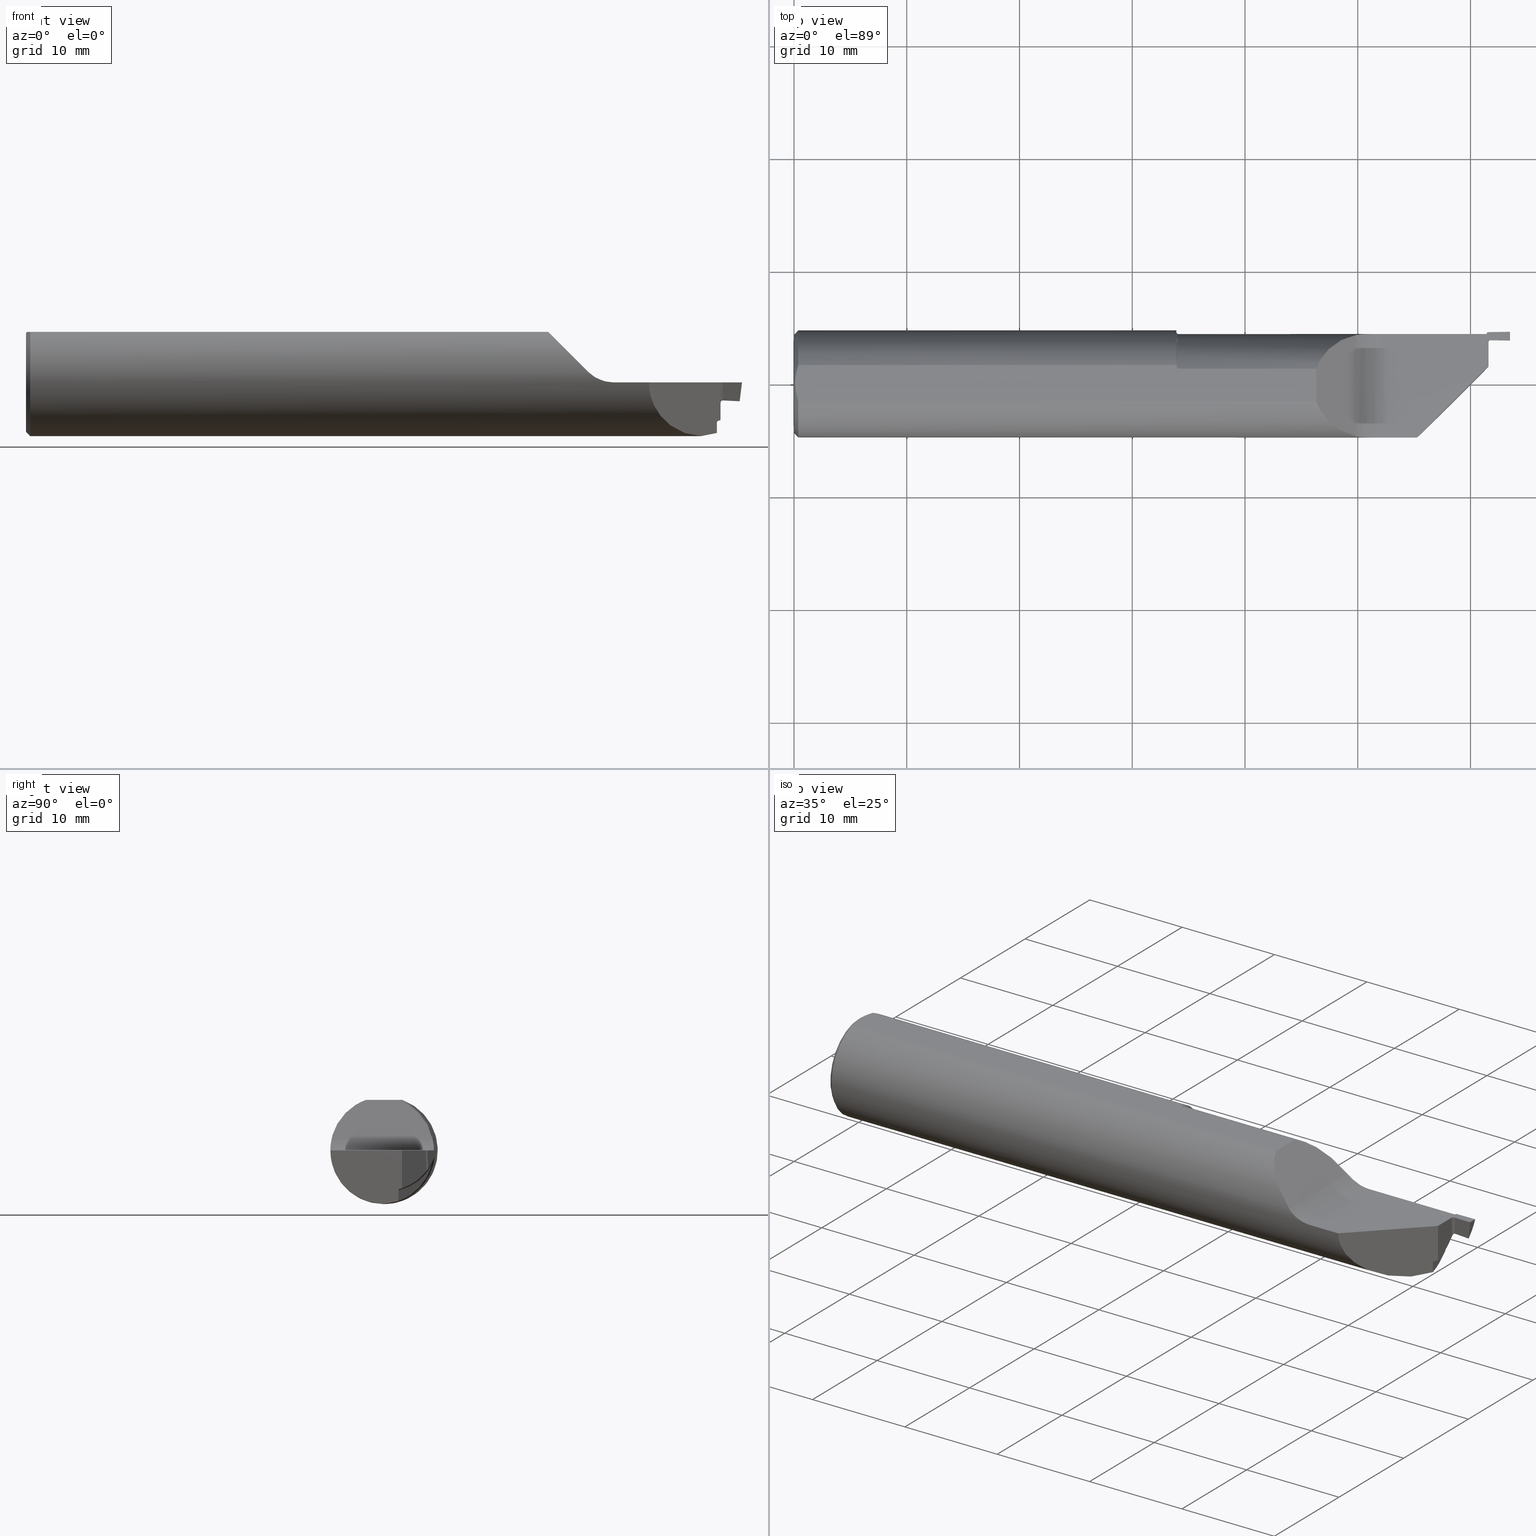
[diagram: canonical four-view strip — front | top / right | iso, engineering-drawing reading convention]
A machine part, canonical four-view strip (front | top / right | iso — engineering-drawing reading convention). The complete STEP part file that produces these views, byte-faithful:
ISO-10303-21;
HEADER;
FILE_DESCRIPTION (( 'STEP AP203' ),
    '1' );
FILE_NAME ('220097-FG375-030.STEP',
    '2024-06-10T23:33:25',
    ( '' ),
    ( '' ),
    'SwSTEP 2.0',
    'SolidWorks 2022',
    '' );
FILE_SCHEMA (( 'CONFIG_CONTROL_DESIGN' ));
ENDSEC;

DATA;
#1 = PLANE ( 'NONE',  #752 ) ;
#2 = ORIENTED_EDGE ( 'NONE', *, *, #270, .F. ) ;
#3 = CARTESIAN_POINT ( 'NONE',  ( 2.433379501196029526, 0.1662541558047750112, -0.3934609555193290253 ) ) ;
#4 = ORIENTED_EDGE ( 'NONE', *, *, #731, .F. ) ;
#5 = CARTESIAN_POINT ( 'NONE',  ( 0.01499999999999953280, 0.000000000000000000, -0.1873499999999999888 ) ) ;
#6 = DIRECTION ( 'NONE',  ( -1.000000000000000000, -0.000000000000000000, -0.000000000000000000 ) ) ;
#7 = CARTESIAN_POINT ( 'NONE',  ( 2.430412992329182842, 0.1543821329831975009, -0.06340281252517075694 ) ) ;
#8 = DIRECTION ( 'NONE',  ( -0.000000000000000000, 0.000000000000000000, 1.000000000000000000 ) ) ;
#9 = CARTESIAN_POINT ( 'NONE',  ( 2.425005047996914076, 0.1448016612778511847, -0.008282853067737593056 ) ) ;
#10 = ORIENTED_EDGE ( 'NONE', *, *, #573, .F. ) ;
#11 = DIRECTION ( 'NONE',  ( -1.000000000000000000, -0.000000000000000000, -0.000000000000000000 ) ) ;
#12 = CARTESIAN_POINT ( 'NONE',  ( 2.043518208465806119, 0.1743492383597801676, 2.004200005117457956E-17 ) ) ;
#13 = CARTESIAN_POINT ( 'NONE',  ( 2.431766170517534409, 0.1547374382159003026, -0.06290924638674359748 ) ) ;
#14 = CARTESIAN_POINT ( 'NONE',  ( 2.420000000000000373, 0.2243492383597801842, 0.000000000000000000 ) ) ;
#15 = CC_DESIGN_PERSON_AND_ORGANIZATION_ASSIGNMENT ( #880, #61, ( #627 ) ) ;
#16 = CARTESIAN_POINT ( 'NONE',  ( 2.051776695296636976, 0.2873499999999999943, 0.1250000000000000000 ) ) ;
#17 = CARTESIAN_POINT ( 'NONE',  ( 1.335009689054889037, 0.06325108694718309388, 0.1763499999999996737 ) ) ;
#18 = AXIS2_PLACEMENT_3D ( 'NONE', #16, #612, #150 ) ;
#19 = DIRECTION ( 'NONE',  ( -0.0006090802009083879243, -0.03489418134011375294, 0.9993908270190957621 ) ) ;
#20 = ORIENTED_EDGE ( 'NONE', *, *, #500, .T. ) ;
#21 = CARTESIAN_POINT ( 'NONE',  ( 1.337195659723047436, 0.007509920994524191089, -0.1872250261289547246 ) ) ;
#22 = CARTESIAN_POINT ( 'NONE',  ( 2.043515043950825838, -0.1873499999999999888, 3.001297844601850477E-19 ) ) ;
#23 = ORIENTED_EDGE ( 'NONE', *, *, #535, .F. ) ;
#24 = B_SPLINE_CURVE_WITH_KNOTS ( 'NONE', 3,
 ( #662, #177, #398, #333 ),
 .UNSPECIFIED., .F., .F.,
 ( 4, 4 ),
 ( 0.000000000000000000, 3.399402199757645609E-05 ),
 .UNSPECIFIED. ) ;
#25 = APPROVAL ( #757, 'UNSPECIFIED' ) ;
#26 = ORIENTED_EDGE ( 'NONE', *, *, #474, .T. ) ;
#27 = EDGE_CURVE ( 'NONE', #167, #770, #256, .T. ) ;
#28 = CARTESIAN_POINT ( 'NONE',  ( 2.433178088239333459, 0.1547152152436982453, -0.06297859693188691266 ) ) ;
#29 = AXIS2_PLACEMENT_3D ( 'NONE', #565, #759, #269 ) ;
#30 = ORIENTED_EDGE ( 'NONE', *, *, #891, .T. ) ;
#31 = CARTESIAN_POINT ( 'NONE',  ( 2.415000000000000480, -0.01315076164021992781, 0.000000000000000000 ) ) ;
#32 = ORIENTED_EDGE ( 'NONE', *, *, #146, .F. ) ;
#33 = DIRECTION ( 'NONE',  ( 0.000000000000000000, 0.000000000000000000, 1.000000000000000000 ) ) ;
#34 = AXIS2_PLACEMENT_3D ( 'NONE', #514, #866, #869 ) ;
#35 = DIRECTION ( 'NONE',  ( 0.000000000000000000, 0.000000000000000000, 1.000000000000000000 ) ) ;
#36 = B_SPLINE_CURVE_WITH_KNOTS ( 'NONE', 3,
 ( #366, #651, #506, #864, #584, #303 ),
 .UNSPECIFIED., .F., .F.,
 ( 4, 2, 4 ),
 ( 0.005686795504019448270, 0.006495656790038640237, 0.007304518076057832203 ),
 .UNSPECIFIED. ) ;
#37 = AXIS2_PLACEMENT_3D ( 'NONE', #582, #794, #35 ) ;
#38 = DIRECTION ( 'NONE',  ( -1.000000000000000000, 0.000000000000000000, -0.000000000000000000 ) ) ;
#39 = VERTEX_POINT ( 'NONE', #486 ) ;
#40 = DIMENSIONAL_EXPONENTS ( 1.000000000000000000, 0.000000000000000000, 0.000000000000000000, 0.000000000000000000, 0.000000000000000000, 0.000000000000000000, 0.000000000000000000 ) ;
#41 = APPLICATION_PROTOCOL_DEFINITION ( 'international standard', 'config_control_design', 1994, #671 ) ;
#42 = CARTESIAN_POINT ( 'NONE',  ( 2.425005047996914076, 0.1448016612778511847, -0.008282853067737593056 ) ) ;
#43 = VERTEX_POINT ( 'NONE', #600 ) ;
#44 = FACE_OUTER_BOUND ( 'NONE', #409, .T. ) ;
#45 = ORIENTED_EDGE ( 'NONE', *, *, #466, .T. ) ;
#46 =( BOUNDED_CURVE ( )  B_SPLINE_CURVE ( 3, ( #471, #255, #251, #741 ),
 .UNSPECIFIED., .F., .T. ) 
 B_SPLINE_CURVE_WITH_KNOTS ( ( 4, 4 ),
 ( 2.894999207919831008, 2.940234732799462680 ),
 .UNSPECIFIED. ) 
 CURVE ( )  GEOMETRIC_REPRESENTATION_ITEM ( )  RATIONAL_B_SPLINE_CURVE ( ( 1.000000000000000000, 0.9998294862099725844, 0.9998294862099725844, 1.000000000000000000 ) ) 
 REPRESENTATION_ITEM ( '' )  );
#47 = COORDINATED_UNIVERSAL_TIME_OFFSET ( 8, 0, .BEHIND. ) ;
#48 = CARTESIAN_POINT ( 'NONE',  ( 0.000000000000000000, 0.000000000000000000, 0.000000000000000000 ) ) ;
#49 = LOCAL_TIME ( 16, 33, 25.00000000000000000, #812 ) ;
#50 = DIRECTION ( 'NONE',  ( 0.000000000000000000, 0.000000000000000000, 1.000000000000000000 ) ) ;
#51 = DIRECTION ( 'NONE',  ( 0.000000000000000000, 0.000000000000000000, 1.000000000000000000 ) ) ;
#52 = EDGE_CURVE ( 'NONE', #590, #469, #190, .T. ) ;
#53 = VERTEX_POINT ( 'NONE', #68 ) ;
#54 = EDGE_CURVE ( 'NONE', #248, #185, #473, .T. ) ;
#55 = PERSON_AND_ORGANIZATION ( #688, #789 ) ;
#56 = EDGE_LOOP ( 'NONE', ( #427, #30, #236 ) ) ;
#57 = CARTESIAN_POINT ( 'NONE',  ( 1.897364539052141197, -0.1705819631923700119, 0.1026354609478592056 ) ) ;
#58 = AXIS2_PLACEMENT_3D ( 'NONE', #212, #551, #695 ) ;
#59 = CARTESIAN_POINT ( 'NONE',  ( 1.336331159115146772, 0.05501236657328722329, 0.1763500000000000068 ) ) ;
#60 = ORIENTED_EDGE ( 'NONE', *, *, #329, .T. ) ;
#61 = PERSON_AND_ORGANIZATION_ROLE ( 'creator' ) ;
#62 = ORIENTED_EDGE ( 'NONE', *, *, #301, .F. ) ;
#63 = CARTESIAN_POINT ( 'NONE',  ( 2.433178088239333459, 0.1547152152436982453, -0.06297859693188691266 ) ) ;
#64 = DIRECTION ( 'NONE',  ( 0.000000000000000000, 1.000000000000000000, 0.000000000000000000 ) ) ;
#65 = AXIS2_PLACEMENT_3D ( 'NONE', #735, #382, #744 ) ;
#66 = CARTESIAN_POINT ( 'NONE',  ( 2.415000000000000036, 0.1793492383597802831, 0.000000000000000000 ) ) ;
#67 = FACE_OUTER_BOUND ( 'NONE', #516, .T. ) ;
#68 = CARTESIAN_POINT ( 'NONE',  ( 2.500000000000000000, 0.1513492383597803692, 0.000000000000000000 ) ) ;
#69 =( BOUNDED_CURVE ( )  B_SPLINE_CURVE ( 3, ( #457, #530, #601, #887 ),
 .UNSPECIFIED., .F., .T. ) 
 B_SPLINE_CURVE_WITH_KNOTS ( ( 4, 4 ),
 ( 1.098115977957309974, 1.510631064996849071 ),
 .UNSPECIFIED. ) 
 CURVE ( )  GEOMETRIC_REPRESENTATION_ITEM ( )  RATIONAL_B_SPLINE_CURVE ( ( 1.000000000000000000, 0.9858694772487300861, 0.9858694772487300861, 1.000000000000000000 ) ) 
 REPRESENTATION_ITEM ( '' )  );
#70 = CARTESIAN_POINT ( 'NONE',  ( 2.425000000000000266, 0.1445175090856191114, -0.1873499999999999888 ) ) ;
#71 = CIRCLE ( 'NONE', #532, 0.007999999999999750366 ) ;
#72 = CARTESIAN_POINT ( 'NONE',  ( 2.414115114763263126, 0.1718910382361288347, -0.03026445539806299143 ) ) ;
#73 = CARTESIAN_POINT ( 'NONE',  ( 2.425000000000000266, 0.06265000000000001124, 0.000000000000000000 ) ) ;
#74 = ORIENTED_EDGE ( 'NONE', *, *, #863, .F. ) ;
#75 = CARTESIAN_POINT ( 'NONE',  ( 2.410321013188299943, 0.1681737486601247444, -0.04788361220678832159 ) ) ;
#76 = DIRECTION ( 'NONE',  ( 0.9998476951563914916, 0.01745240643726934937, 0.000000000000000000 ) ) ;
#77 = CARTESIAN_POINT ( 'NONE',  ( 1.963388347648318932, -0.1837378823544007778, 0.03661165235168152565 ) ) ;
#78 = CYLINDRICAL_SURFACE ( 'NONE', #361, 0.007999999999999750366 ) ;
#79 = VERTEX_POINT ( 'NONE', #399 ) ;
#80 = AXIS2_PLACEMENT_3D ( 'NONE', #31, #231, #578 ) ;
#81 = CARTESIAN_POINT ( 'NONE',  ( 2.376537322261709662, 0.01418732226170915482, -0.1864309973068664084 ) ) ;
#82 = CARTESIAN_POINT ( 'NONE',  ( 2.428288456138443685, 0.1533287287388805098, -0.06488088673268163631 ) ) ;
#83 = DIRECTION ( 'NONE',  ( 1.000000000000000000, 0.000000000000000000, 0.000000000000000000 ) ) ;
#84 = CARTESIAN_POINT ( 'NONE',  ( 1.338951377213943861, -0.002870465228317849431, -0.1873283842962036871 ) ) ;
#85 = DIRECTION ( 'NONE',  ( 1.000000000000000000, 0.000000000000000000, 0.000000000000000000 ) ) ;
#86 = VECTOR ( 'NONE', #11, 39.37007874015748143 ) ;
#87 = DIRECTION ( 'NONE',  ( 0.000000000000000000, -1.000000000000000000, 0.000000000000000000 ) ) ;
#88 = EDGE_CURVE ( 'NONE', #53, #704, #685, .T. ) ;
#89 = EDGE_CURVE ( 'NONE', #575, #652, #170, .T. ) ;
#90 = B_SPLINE_CURVE_WITH_KNOTS ( 'NONE', 3,
 ( #283, #567, #774, #425, #504, #620 ),
 .UNSPECIFIED., .F., .F.,
 ( 4, 2, 4 ),
 ( 0.000000000000000000, 0.5000000000000000000, 1.000000000000000000 ),
 .UNSPECIFIED. ) ;
#91 = CARTESIAN_POINT ( 'NONE',  ( 2.051776695296636976, -0.1873499999999999888, 0.000000000000000000 ) ) ;
#92 = ADVANCED_FACE ( 'NONE', ( #252 ), #538, .F. ) ;
#93 = EDGE_CURVE ( 'NONE', #348, #493, #875, .T. ) ;
#94 = ORIENTED_EDGE ( 'NONE', *, *, #509, .F. ) ;
#95 = CARTESIAN_POINT ( 'NONE',  ( 2.051776695296636976, -0.2873499999999999943, 0.000000000000000000 ) ) ;
#96 = ORIENTED_EDGE ( 'NONE', *, *, #701, .T. ) ;
#97 = DIRECTION ( 'NONE',  ( -0.7071067811865483499, -0.7071067811865465735, 0.000000000000000000 ) ) ;
#98 = DIRECTION ( 'NONE',  ( -0.000000000000000000, -1.000000000000000000, -0.000000000000000000 ) ) ;
#99 = VECTOR ( 'NONE', #434, 39.37007874015748143 ) ;
#100 = ORIENTED_EDGE ( 'NONE', *, *, #371, .T. ) ;
#101 = DIRECTION ( 'NONE',  ( -0.0006094513490877907953, 0.000000000000000000, 0.9999998142845092364 ) ) ;
#102 = FACE_OUTER_BOUND ( 'NONE', #285, .T. ) ;
#103 = EDGE_LOOP ( 'NONE', ( #10, #384, #154, #801, #232, #850, #625 ) ) ;
#104 = CARTESIAN_POINT ( 'NONE',  ( 2.425245139754564683, -0.08475905418112948675, -0.4022301524236606141 ) ) ;
#105 = CIRCLE ( 'NONE', #851, 0.1723500000000004195 ) ;
#106 = FACE_OUTER_BOUND ( 'NONE', #291, .T. ) ;
#107 = VECTOR ( 'NONE', #718, 39.37007874015748143 ) ;
#108 = ORIENTED_EDGE ( 'NONE', *, *, #54, .F. ) ;
#109 = CARTESIAN_POINT ( 'NONE',  ( 2.425000000000000266, 0.06265000000000001124, 0.000000000000000000 ) ) ;
#110 = DIRECTION ( 'NONE',  ( 0.000000000000000000, 0.000000000000000000, -1.000000000000000000 ) ) ;
#111 = ORIENTED_EDGE ( 'NONE', *, *, #88, .T. ) ;
#112 = CARTESIAN_POINT ( 'NONE',  ( 1.340000000000000080, -0.01315076164021992781, 0.000000000000000000 ) ) ;
#113 = ORIENTED_EDGE ( 'NONE', *, *, #633, .F. ) ;
#114 = EDGE_CURVE ( 'NONE', #664, #116, #284, .T. ) ;
#115 = PLANE ( 'NONE',  #586 ) ;
#116 = VERTEX_POINT ( 'NONE', #404 ) ;
#117 = PLANE ( 'NONE',  #733 ) ;
#118 = EDGE_LOOP ( 'NONE', ( #224, #201, #764, #719, #594 ) ) ;
#119 = B_SPLINE_CURVE_WITH_KNOTS ( 'NONE', 3,
 ( #692, #771, #892, #476 ),
 .UNSPECIFIED., .F., .F.,
 ( 4, 4 ),
 ( 0.0001017657697779882314, 0.0001083259714313672899 ),
 .UNSPECIFIED. ) ;
#120 = APPROVAL_ROLE ( '' ) ;
#121 = VERTEX_POINT ( 'NONE', #254 ) ;
#122 = CARTESIAN_POINT ( 'NONE',  ( 2.416161908848543316, 0.1721701450441718295, -0.02932444125440424390 ) ) ;
#123 = CIRCLE ( 'NONE', #235, 0.1873499999999999888 ) ;
#124 = PLANE ( 'NONE',  #65 ) ;
#125 = DIRECTION ( 'NONE',  ( 0.7071067811865467956, 0.000000000000000000, -0.7071067811865483499 ) ) ;
#126 = CALENDAR_DATE ( 2024, 10, 6 ) ;
#127 = ORIENTED_EDGE ( 'NONE', *, *, #737, .F. ) ;
#128 = CARTESIAN_POINT ( 'NONE',  ( 2.432999999999999829, 0.1445175090856191114, 0.000000000000000000 ) ) ;
#129 = CARTESIAN_POINT ( 'NONE',  ( 1.969175886172399359, 0.1718923342275688881, 0.03082411382760027324 ) ) ;
#130 = CARTESIAN_POINT ( 'NONE',  ( 2.413280096661680307, 0.1716893278446172122, -0.03147370469556214079 ) ) ;
#131 = CARTESIAN_POINT ( 'NONE',  ( 2.425000000000000266, 0.06265000000000001124, -0.1873499999999999888 ) ) ;
#132 = FACE_OUTER_BOUND ( 'NONE', #118, .T. ) ;
#133 = CARTESIAN_POINT ( 'NONE',  ( 2.500000000000000000, -0.2873499999999999943, 0.000000000000000000 ) ) ;
#134 = CARTESIAN_POINT ( 'NONE',  ( 1.336187288558007502, 0.01991515597133086679, -0.1863922880607652710 ) ) ;
#135 = ORIENTED_EDGE ( 'NONE', *, *, #27, .F. ) ;
#136 = CARTESIAN_POINT ( 'NONE',  ( 1.335000000000000187, 0.06629317938995302195, 0.1752365688409875943 ) ) ;
#137 = CARTESIAN_POINT ( 'NONE',  ( 2.425000000000000266, 0.1445175090856191114, -0.07641921299299629655 ) ) ;
#138 = VECTOR ( 'NONE', #76, 39.37007874015748854 ) ;
#139 = UNCERTAINTY_MEASURE_WITH_UNIT (LENGTH_MEASURE( 1.000000000000000082E-05 ), #300, 'distance_accuracy_value', 'NONE');
#140 = CARTESIAN_POINT ( 'NONE',  ( 2.418092672282741162, 0.009429139822881309543, 0.03500000000000000333 ) ) ;
#141 = CARTESIAN_POINT ( 'NONE',  ( 2.425025475456799917, 0.1451834830664618659, -0.04180063282621210990 ) ) ;
#142 = VERTEX_POINT ( 'NONE', #411 ) ;
#143 = CARTESIAN_POINT ( 'NONE',  ( 0.000000000000000000, -0.1873499999999999888, 0.000000000000000000 ) ) ;
#144 = EDGE_CURVE ( 'NONE', #245, #295, #900, .T. ) ;
#145 = CARTESIAN_POINT ( 'NONE',  ( 1.969176586392017869, -0.1848912481268661367, 0.03082341360798271021 ) ) ;
#146 = EDGE_CURVE ( 'NONE', #522, #652, #462, .T. ) ;
#147 = CARTESIAN_POINT ( 'NONE',  ( 1.335166595942603118, 0.04439214968827082108, -0.1824345190479061685 ) ) ;
#148 = ORIENTED_EDGE ( 'NONE', *, *, #230, .T. ) ;
#149 = AXIS2_PLACEMENT_3D ( 'NONE', #508, #169, #861 ) ;
#150 = DIRECTION ( 'NONE',  ( 0.000000000000000000, 0.000000000000000000, 1.000000000000000000 ) ) ;
#151 = CARTESIAN_POINT ( 'NONE',  ( 2.035390929681094807, -0.1873549854116181856, 0.0008110107679984991354 ) ) ;
#152 = EDGE_CURVE ( 'NONE', #742, #510, #71, .T. ) ;
#153 = CARTESIAN_POINT ( 'NONE',  ( 2.425000000000000266, 0.1445175090856191114, 0.000000000000000000 ) ) ;
#154 = ORIENTED_EDGE ( 'NONE', *, *, #645, .F. ) ;
#155 = EDGE_CURVE ( 'NONE', #195, #563, #207, .T. ) ;
#156 = EDGE_CURVE ( 'NONE', #446, #575, #396, .T. ) ;
#157 = CARTESIAN_POINT ( 'NONE',  ( 2.425002345047224228, 0.1447124151100679657, -0.002944330584223637561 ) ) ;
#158 = EDGE_CURVE ( 'NONE', #522, #348, #119, .T. ) ;
#159 = CARTESIAN_POINT ( 'NONE',  ( 2.416116090373312097, 0.05376609037331224472, -0.1342873896218227669 ) ) ;
#160 = ORIENTED_EDGE ( 'NONE', *, *, #270, .T. ) ;
#161 = CARTESIAN_POINT ( 'NONE',  ( 2.410635756131426000, 0.1501421375228592925, -0.1108388661426531474 ) ) ;
#162 = ORIENTED_EDGE ( 'NONE', *, *, #407, .T. ) ;
#163 = LOCAL_TIME ( 16, 33, 25.00000000000000000, #883 ) ;
#164 = PERSON_AND_ORGANIZATION ( #688, #789 ) ;
#165 = LINE ( 'NONE', #95, #657 ) ;
#166 =( BOUNDED_CURVE ( )  B_SPLINE_CURVE ( 3, ( #213, #141, #266, #9 ),
 .UNSPECIFIED., .F., .T. ) 
 B_SPLINE_CURVE_WITH_KNOTS ( ( 4, 4 ),
 ( 6.175968681963142970, 6.247658810434280952 ),
 .UNSPECIFIED. ) 
 CURVE ( )  GEOMETRIC_REPRESENTATION_ITEM ( )  RATIONAL_B_SPLINE_CURVE ( ( 1.000000000000000000, 0.9995717563126685912, 0.9995717563126685912, 1.000000000000000000 ) ) 
 REPRESENTATION_ITEM ( '' )  );
#167 = VERTEX_POINT ( 'NONE', #677 ) ;
#168 = FACE_OUTER_BOUND ( 'NONE', #840, .T. ) ;
#169 = DIRECTION ( 'NONE',  ( 1.000000000000000000, 0.000000000000000000, 0.000000000000000000 ) ) ;
#170 = CIRCLE ( 'NONE', #725, 0.1925000000000001987 ) ;
#171 = ORIENTED_EDGE ( 'NONE', *, *, #577, .F. ) ;
#172 = EDGE_CURVE ( 'NONE', #289, #214, #397, .T. ) ;
#173 = DIRECTION ( 'NONE',  ( -1.000000000000000000, -0.000000000000000000, -0.000000000000000000 ) ) ;
#174 = ORIENTED_EDGE ( 'NONE', *, *, #308, .F. ) ;
#175 = CARTESIAN_POINT ( 'NONE',  ( 1.339391378728019832, 0.05054325299224062679, 0.1763499999999999512 ) ) ;
#176 = EDGE_LOOP ( 'NONE', ( #74, #805, #554, #274, #108 ) ) ;
#177 = CARTESIAN_POINT ( 'NONE',  ( 2.425000000000000266, 0.1448057356853853228, -0.07607017568946736197 ) ) ;
#178 = EDGE_CURVE ( 'NONE', #380, #121, #448, .T. ) ;
#179 = ORIENTED_EDGE ( 'NONE', *, *, #54, .T. ) ;
#180 = COORDINATED_UNIVERSAL_TIME_OFFSET ( 8, 0, .BEHIND. ) ;
#181 = DIRECTION ( 'NONE',  ( -1.000000000000000000, -0.000000000000000000, -0.000000000000000000 ) ) ;
#182 = ORIENTED_EDGE ( 'NONE', *, *, #631, .F. ) ;
#183 = PERSON_AND_ORGANIZATION ( #688, #789 ) ;
#184 = AXIS2_PLACEMENT_3D ( 'NONE', #48, #389, #110 ) ;
#185 = VERTEX_POINT ( 'NONE', #5 ) ;
#186 = ORIENTED_EDGE ( 'NONE', *, *, #240, .T. ) ;
#187 = CARTESIAN_POINT ( 'NONE',  ( 2.416777580681768622, 0.1724811040968264597, -0.02855973112342452200 ) ) ;
#188 = CARTESIAN_POINT ( 'NONE',  ( 1.337621628564846787, 0.05225604298120335722, 0.1763500000000000068 ) ) ;
#189 = PRODUCT_DEFINITION_SHAPE ( 'NONE', 'NONE',  #497 ) ;
#190 = LINE ( 'NONE', #603, #857 ) ;
#191 = CARTESIAN_POINT ( 'NONE',  ( 2.410503924394359565, 0.1691269700428672806, -0.04411495659477527448 ) ) ;
#192 = AXIS2_PLACEMENT_3D ( 'NONE', #66, #418, #483 ) ;
#193 = CARTESIAN_POINT ( 'NONE',  ( 2.424999999999999822, 0.1229612316728894567, -0.1025234828569286799 ) ) ;
#194 =( BOUNDED_CURVE ( )  B_SPLINE_CURVE ( 3, ( #377, #381, #792, #739 ),
 .UNSPECIFIED., .F., .T. ) 
 B_SPLINE_CURVE_WITH_KNOTS ( ( 4, 4 ),
 ( 4.736077221231925094, 6.283185307179586232 ),
 .UNSPECIFIED. ) 
 CURVE ( )  GEOMETRIC_REPRESENTATION_ITEM ( )  RATIONAL_B_SPLINE_CURVE ( ( 1.000000000000000000, 0.8102880308174518209, 0.8102880308174518209, 1.000000000000000000 ) ) 
 REPRESENTATION_ITEM ( '' )  );
#195 = VERTEX_POINT ( 'NONE', #268 ) ;
#196 = VERTEX_POINT ( 'NONE', #545 ) ;
#197 = CARTESIAN_POINT ( 'NONE',  ( 2.472080904417914393, 0.1541022348182849999, -0.06487032769667915033 ) ) ;
#198 = DIRECTION ( 'NONE',  ( -0.9998476951563916026, -0.01745240643726935284, -0.000000000000000000 ) ) ;
#199 = CARTESIAN_POINT ( 'NONE',  ( 1.989151228518893477, -0.1866765615736736272, 0.01651232730745808355 ) ) ;
#200 = CIRCLE ( 'NONE', #539, 0.1799999999999999656 ) ;
#201 = ORIENTED_EDGE ( 'NONE', *, *, #589, .F. ) ;
#202 = CARTESIAN_POINT ( 'NONE',  ( 1.897454588124415586, 0.1576130183548815344, 0.1025454118755840666 ) ) ;
#203 = ORIENTED_EDGE ( 'NONE', *, *, #312, .T. ) ;
#204 = CARTESIAN_POINT ( 'NONE',  ( 2.357912423116064193, -0.004437576883935920487, -0.1872974383471407711 ) ) ;
#205 = CARTESIAN_POINT ( 'NONE',  ( 0.000000000000000000, 0.000000000000000000, 0.000000000000000000 ) ) ;
#206 = ORIENTED_EDGE ( 'NONE', *, *, #88, .F. ) ;
#207 = B_SPLINE_CURVE_WITH_KNOTS ( 'NONE', 3,
 ( #754, #136, #827, #275 ),
 .UNSPECIFIED., .F., .F.,
 ( 4, 4 ),
 ( 0.002381199190277828726, 0.002506274907967739364 ),
 .UNSPECIFIED. ) ;
#208 = EDGE_CURVE ( 'NONE', #53, #742, #555, .T. ) ;
#209 = CARTESIAN_POINT ( 'NONE',  ( 2.425045078678965016, 0.1465101472840797392, -0.07396598704792063661 ) ) ;
#210 = EDGE_CURVE ( 'NONE', #552, #590, #537, .T. ) ;
#211 = VECTOR ( 'NONE', #690, 39.37007874015748143 ) ;
#212 = CARTESIAN_POINT ( 'NONE',  ( 2.000000000000000000, -0.2873499999999999943, 0.000000000000000000 ) ) ;
#213 = CARTESIAN_POINT ( 'NONE',  ( 2.425045937587656297, 0.1453735997002969516, -0.07537530139781965788 ) ) ;
#214 = VERTEX_POINT ( 'NONE', #405 ) ;
#215 = CARTESIAN_POINT ( 'NONE',  ( 2.011402846495882635, 0.1742657643842316917, 0.006416841385945333369 ) ) ;
#216 = AXIS2_PLACEMENT_3D ( 'NONE', #797, #802, #724 ) ;
#217 = ORIENTED_EDGE ( 'NONE', *, *, #474, .F. ) ;
#218 = CIRCLE ( 'NONE', #335, 0.1875000000000001110 ) ;
#219 = CARTESIAN_POINT ( 'NONE',  ( 0.9958286716179119979, 0.05054325299224011331, 0.1763499999999999790 ) ) ;
#220 = LINE ( 'NONE', #507, #99 ) ;
#221 = ORIENTED_EDGE ( 'NONE', *, *, #243, .F. ) ;
#222 = CARTESIAN_POINT ( 'NONE',  ( 2.410339731745216874, 0.1671013632505985169, -0.05162771999948106982 ) ) ;
#223 = VECTOR ( 'NONE', #560, 39.37007874015748854 ) ;
#224 = ORIENTED_EDGE ( 'NONE', *, *, #158, .F. ) ;
#225 = LENGTH_MEASURE_WITH_UNIT ( LENGTH_MEASURE( 0.02539999999999999897 ), #523 );
#226 = DIRECTION ( 'NONE',  ( 0.000000000000000000, 1.000000000000000000, 0.000000000000000000 ) ) ;
#227 = ORIENTED_EDGE ( 'NONE', *, *, #240, .F. ) ;
#228 = CC_DESIGN_APPROVAL ( #436, ( #497 ) ) ;
#229 = CARTESIAN_POINT ( 'NONE',  ( 2.413093433806959176, 0.009341877790694961062, 0.03500000000000000333 ) ) ;
#230 = EDGE_CURVE ( 'NONE', #310, #510, #412, .T. ) ;
#231 = DIRECTION ( 'NONE',  ( -1.000000000000000000, -0.000000000000000000, -0.000000000000000000 ) ) ;
#232 = ORIENTED_EDGE ( 'NONE', *, *, #631, .T. ) ;
#233 = CARTESIAN_POINT ( 'NONE',  ( 0.01499999999999954321, -0.06325108694718213631, 0.1763499999999999790 ) ) ;
#234 = DIRECTION ( 'NONE',  ( 0.000000000000000000, 0.000000000000000000, -1.000000000000000000 ) ) ;
#235 = AXIS2_PLACEMENT_3D ( 'NONE', #339, #618, #406 ) ;
#236 = ORIENTED_EDGE ( 'NONE', *, *, #509, .T. ) ;
#237 = DIRECTION ( 'NONE',  ( 0.01745240643726934937, -0.9998476951563914916, 0.000000000000000000 ) ) ;
#238 = CARTESIAN_POINT ( 'NONE',  ( 2.433139705841341094, 0.1525162891354388817, 1.493979371535143794E-17 ) ) ;
#239 = ADVANCED_FACE ( 'NONE', ( #67 ), #693, .F. ) ;
#240 = EDGE_CURVE ( 'NONE', #116, #53, #338, .T. ) ;
#241 = ORIENTED_EDGE ( 'NONE', *, *, #466, .F. ) ;
#242 = DIRECTION ( 'NONE',  ( -0.9999998142845093474, 2.458619008524014015E-16, -0.0006094513490877909037 ) ) ;
#243 = EDGE_CURVE ( 'NONE', #770, #310, #730, .T. ) ;
#244 = EDGE_CURVE ( 'NONE', #435, #289, #569, .T. ) ;
#245 = VERTEX_POINT ( 'NONE', #842 ) ;
#246 =( BOUNDED_CURVE ( )  B_SPLINE_CURVE ( 3, ( #222, #161, #293, #668 ),
 .UNSPECIFIED., .F., .T. ) 
 B_SPLINE_CURVE_WITH_KNOTS ( ( 4, 4 ),
 ( 0.2789515101749618919, 1.227087886097275371 ),
 .UNSPECIFIED. ) 
 CURVE ( )  GEOMETRIC_REPRESENTATION_ITEM ( )  RATIONAL_B_SPLINE_CURVE ( ( 1.000000000000000000, 0.9264789926384691121, 0.9264789926384691121, 1.000000000000000000 ) ) 
 REPRESENTATION_ITEM ( '' )  );
#247 = B_SPLINE_CURVE_WITH_KNOTS ( 'NONE', 3,
 ( #541, #386, #804, #524, #810, #814 ),
 .UNSPECIFIED., .F., .F.,
 ( 4, 2, 4 ),
 ( 0.004067309716740378708, 0.004877052610379913056, 0.005686795504019448270 ),
 .UNSPECIFIED. ) ;
#248 = VERTEX_POINT ( 'NONE', #705 ) ;
#249 = VECTOR ( 'NONE', #19, 39.37007874015748143 ) ;
#250 = CALENDAR_DATE ( 2024, 10, 6 ) ;
#251 = CARTESIAN_POINT ( 'NONE',  ( 2.420000000000000817, 0.1804249599765743173, -0.002585646057239593745 ) ) ;
#252 = FACE_OUTER_BOUND ( 'NONE', #781, .T. ) ;
#253 = ORIENTED_EDGE ( 'NONE', *, *, #230, .F. ) ;
#254 = CARTESIAN_POINT ( 'NONE',  ( 1.823649999999999771, -0.06325108694718213631, 0.1763499999999999790 ) ) ;
#255 = CARTESIAN_POINT ( 'NONE',  ( 2.420000000000000817, 0.1798387363522567506, -0.005158694307815552688 ) ) ;
#256 =( BOUNDED_CURVE ( )  B_SPLINE_CURVE ( 3, ( #762, #825, #895, #548 ),
 .UNSPECIFIED., .F., .F. ) 
 B_SPLINE_CURVE_WITH_KNOTS ( ( 4, 4 ),
 ( 1.833971977229343020, 1.879038394447086535 ),
 .UNSPECIFIED. ) 
 CURVE ( )  GEOMETRIC_REPRESENTATION_ITEM ( )  RATIONAL_B_SPLINE_CURVE ( ( 1.000000000000000000, 0.9998307586644052947, 0.9998307586644052947, 1.000000000000000000 ) ) 
 REPRESENTATION_ITEM ( '' )  );
#257 = ORIENTED_EDGE ( 'NONE', *, *, #343, .T. ) ;
#258 = DATE_AND_TIME ( #609, #163 ) ;
#259 = CARTESIAN_POINT ( 'NONE',  ( 2.411594056423522314, 0.1707683343821577715, -0.03651856916665762592 ) ) ;
#260 = CARTESIAN_POINT ( 'NONE',  ( 2.425044645220354678, 0.1470701846894452158, -0.07325475959643105994 ) ) ;
#261 = APPROVAL_DATE_TIME ( #324, #653 ) ;
#262 = DIRECTION ( 'NONE',  ( 0.7071067811865467956, 8.659560562354943952E-17, 0.7071067811865483499 ) ) ;
#263 = CARTESIAN_POINT ( 'NONE',  ( 2.051776695296636976, 0.1743492383597801676, 0.000000000000000000 ) ) ;
#264 = FACE_OUTER_BOUND ( 'NONE', #316, .T. ) ;
#265 = ORIENTED_EDGE ( 'NONE', *, *, #152, .T. ) ;
#266 = CARTESIAN_POINT ( 'NONE',  ( 2.425011839753815401, 0.1449927552476621972, -0.01942690197382548542 ) ) ;
#267 = ORIENTED_EDGE ( 'NONE', *, *, #172, .F. ) ;
#268 = CARTESIAN_POINT ( 'NONE',  ( 1.335000000000000187, 0.06780158507429057124, 0.1746509878626906764 ) ) ;
#269 = DIRECTION ( 'NONE',  ( 0.000000000000000000, 0.000000000000000000, 1.000000000000000000 ) ) ;
#270 = EDGE_CURVE ( 'NONE', #79, #525, #326, .T. ) ;
#271 = CARTESIAN_POINT ( 'NONE',  ( 2.425000000000000266, 0.1445175090856191114, 0.000000000000000000 ) ) ;
#272 = LOCAL_TIME ( 16, 33, 25.00000000000000000, #180 ) ;
#273 = FACE_OUTER_BOUND ( 'NONE', #610, .T. ) ;
#274 = ORIENTED_EDGE ( 'NONE', *, *, #899, .F. ) ;
#275 = CARTESIAN_POINT ( 'NONE',  ( 1.335009689054889037, 0.06325108694718309388, 0.1763499999999996737 ) ) ;
#276 = DIRECTION ( 'NONE',  ( 0.01745240643726858609, -0.9998476951563914916, 0.000000000000000000 ) ) ;
#277 = CARTESIAN_POINT ( 'NONE',  ( 2.433178088239333459, 0.1547152152436982453, -0.06297859693188691266 ) ) ;
#278 = CARTESIAN_POINT ( 'NONE',  ( 0.01499999999999953280, 0.000000000000000000, 0.000000000000000000 ) ) ;
#279 = ORIENTED_EDGE ( 'NONE', *, *, #371, .F. ) ;
#280 = FACE_OUTER_BOUND ( 'NONE', #786, .T. ) ;
#281 = VECTOR ( 'NONE', #628, 39.37007874015748854 ) ;
#282 = DIRECTION ( 'NONE',  ( 0.1218693434051483088, 0.000000000000000000, 0.9925461516413218721 ) ) ;
#283 = CARTESIAN_POINT ( 'NONE',  ( 2.433139705841341094, 0.1525162891354388817, 1.493979371535143794E-17 ) ) ;
#284 =( BOUNDED_CURVE ( )  B_SPLINE_CURVE ( 3, ( #63, #349, #197, #886 ),
 .UNSPECIFIED., .F., .T. ) 
 B_SPLINE_CURVE_WITH_KNOTS ( ( 4, 4 ),
 ( 0.6291660308098210308, 0.6488008526844126767 ),
 .UNSPECIFIED. ) 
 CURVE ( )  GEOMETRIC_REPRESENTATION_ITEM ( )  RATIONAL_B_SPLINE_CURVE ( ( 1.000000000000000000, 0.9999678730722010300, 0.9999678730722010300, 1.000000000000000000 ) ) 
 REPRESENTATION_ITEM ( '' )  );
#285 = EDGE_LOOP ( 'NONE', ( #716, #488, #160, #876, #322, #304, #416, #580, #372, #784 ) ) ;
#286 = CARTESIAN_POINT ( 'NONE',  ( 1.336913895729895607, 0.01061167438636866772, -0.1870750754728970622 ) ) ;
#287 = B_SPLINE_CURVE_WITH_KNOTS ( 'NONE', 3,
 ( #634, #847, #776, #709, #84, #570, #852, #640, #360, #21, #286, #134, #499, #147, #711, #833 ),
 .UNSPECIFIED., .F., .F.,
 ( 4, 2, 2, 2, 2, 2, 2, 4 ),
 ( 1.972663511944079485E-07, 3.038878334213652248E-05, 6.058030033307863711E-05, 0.0001209633343149629206, 0.0002417294022787314469, 0.0004832615382062712371, 0.0009663258100613504381, 0.001932454353771507647 ),
 .UNSPECIFIED. ) ;
#288 = CARTESIAN_POINT ( 'NONE',  ( 2.413159311148727060, 0.05080931114872633964, -0.1371118278191037765 ) ) ;
#289 = VERTEX_POINT ( 'NONE', #622 ) ;
#290 = CARTESIAN_POINT ( 'NONE',  ( 2.500000000000000000, 0.1823492383597802857, -5.186242675471999688E-16 ) ) ;
#291 = EDGE_LOOP ( 'NONE', ( #811, #749, #481, #898 ) ) ;
#292 = APPROVAL_STATUS ( 'not_yet_approved' ) ;
#293 = CARTESIAN_POINT ( 'NONE',  ( 2.411370952871655593, 0.1080227444840048262, -0.1557780683486446049 ) ) ;
#294 = VECTOR ( 'NONE', #87, 39.37007874015748143 ) ;
#295 = VERTEX_POINT ( 'NONE', #350 ) ;
#296 = CARTESIAN_POINT ( 'NONE',  ( 0.000000000000000000, 0.000000000000000000, 0.000000000000000000 ) ) ;
#297 = CARTESIAN_POINT ( 'NONE',  ( 2.425001483111417500, 0.1446672310198704736, -0.0002790132549053032929 ) ) ;
#298 = ORIENTED_EDGE ( 'NONE', *, *, #830, .F. ) ;
#299 = ADVANCED_FACE ( 'NONE', ( #429 ), #502, .T. ) ;
#300 =( CONVERSION_BASED_UNIT ( 'INCH', #225 ) LENGTH_UNIT ( ) NAMED_UNIT ( #40 ) );
#301 = EDGE_CURVE ( 'NONE', #142, #698, #496, .T. ) ;
#302 = TOROIDAL_SURFACE ( 'NONE', #834, 0.1925000000000001987, 0.005000000000000185719 ) ;
#303 = CARTESIAN_POINT ( 'NONE',  ( 0.01499999999999954321, -0.06325108694718213631, 0.1763499999999999790 ) ) ;
#304 = ORIENTED_EDGE ( 'NONE', *, *, #93, .T. ) ;
#305 = DIRECTION ( 'NONE',  ( -0.9998476951563914916, -0.01745240643726934937, 0.000000000000000000 ) ) ;
#306 = ADVANCED_FACE ( 'NONE', ( #280 ), #740, .F. ) ;
#307 = CARTESIAN_POINT ( 'NONE',  ( 0.000000000000000000, -0.06325108694718213631, 0.1763499999999999790 ) ) ;
#308 = EDGE_CURVE ( 'NONE', #770, #402, #354, .T. ) ;
#309 = CLOSED_SHELL ( 'NONE', ( #641, #734, #829, #520, #638, #239, #894, #299, #800, #534, #803, #761, #92, #408, #428, #571, #885, #478, #306, #644, #468, #826, #576 ) ) ;
#310 = VERTEX_POINT ( 'NONE', #137 ) ;
#311 = EDGE_CURVE ( 'NONE', #727, #704, #419, .T. ) ;
#312 = EDGE_CURVE ( 'NONE', #214, #196, #287, .T. ) ;
#313 =( NAMED_UNIT ( * ) SI_UNIT ( $, .STERADIAN. ) SOLID_ANGLE_UNIT ( ) );
#314 = CARTESIAN_POINT ( 'NONE',  ( 2.415000000000000036, -0.01315076164021991047, 0.000000000000000000 ) ) ;
#315 = CARTESIAN_POINT ( 'NONE',  ( 2.051776695296636976, -0.1873499999999999888, 0.000000000000000000 ) ) ;
#316 = EDGE_LOOP ( 'NONE', ( #227, #336, #206 ) ) ;
#317 = APPROVAL_ROLE ( '' ) ;
#318 = LOCAL_TIME ( 16, 33, 25.00000000000000000, #47 ) ;
#319 = CARTESIAN_POINT ( 'NONE',  ( 1.335069243236268077, 0.06084819611239657144, 0.1763499999999999790 ) ) ;
#320 = EDGE_LOOP ( 'NONE', ( #583, #442, #862, #820, #62, #807, #568, #464, #884, #111, #422 ) ) ;
#321 = DIRECTION ( 'NONE',  ( -1.000000000000000000, 0.000000000000000000, -0.000000000000000000 ) ) ;
#322 = ORIENTED_EDGE ( 'NONE', *, *, #633, .T. ) ;
#323 = AXIS2_PLACEMENT_3D ( 'NONE', #413, #351, #282 ) ;
#324 = DATE_AND_TIME ( #391, #318 ) ;
#325 = ORIENTED_EDGE ( 'NONE', *, *, #737, .T. ) ;
#326 = B_SPLINE_CURVE_WITH_KNOTS ( 'NONE', 3,
 ( #477, #129, #490, #772, #755, #215, #901, #689, #12, #263 ),
 .UNSPECIFIED., .F., .F.,
 ( 4, 2, 2, 2, 4 ),
 ( 0.000000000000000000, 0.0006203411018093670914, 0.001240682203618734183, 0.001861023305428101274, 0.002481364407237468366 ),
 .UNSPECIFIED. ) ;
#327 = CARTESIAN_POINT ( 'NONE',  ( 2.425045937587656297, 0.1453735997002969516, -0.07537530139781965788 ) ) ;
#328 = CARTESIAN_POINT ( 'NONE',  ( 1.337958805214830571, 0.05174923270990745144, 0.1763499999999999235 ) ) ;
#329 = EDGE_CURVE ( 'NONE', #552, #469, #166, .T. ) ;
#330 = ORIENTED_EDGE ( 'NONE', *, *, #156, .T. ) ;
#331 = APPROVAL_DATE_TIME ( #821, #25 ) ;
#332 = DIRECTION ( 'NONE',  ( -1.000000000000000000, 0.000000000000000000, 0.000000000000000000 ) ) ;
#333 = CARTESIAN_POINT ( 'NONE',  ( 2.425045937587656297, 0.1453735997002969516, -0.07537530139781965788 ) ) ;
#334 = APPROVAL_PERSON_ORGANIZATION ( #164, #436, #896 ) ;
#335 = AXIS2_PLACEMENT_3D ( 'NONE', #112, #181, #465 ) ;
#336 = ORIENTED_EDGE ( 'NONE', *, *, #731, .T. ) ;
#337 = DIRECTION ( 'NONE',  ( 0.000000000000000000, 0.000000000000000000, 1.000000000000000000 ) ) ;
#338 = LINE ( 'NONE', #893, #281 ) ;
#339 = CARTESIAN_POINT ( 'NONE',  ( 1.335000000000000187, 0.000000000000000000, 0.000000000000000000 ) ) ;
#340 = ORIENTED_EDGE ( 'NONE', *, *, #210, .F. ) ;
#341 = CARTESIAN_POINT ( 'NONE',  ( 2.415004202274817047, 0.05265420227481731191, -0.1349895646537199456 ) ) ;
#342 = EDGE_LOOP ( 'NONE', ( #353, #543, #868 ) ) ;
#343 = EDGE_CURVE ( 'NONE', #248, #245, #713, .T. ) ;
#344 = CARTESIAN_POINT ( 'NONE',  ( 1.846378452100291501, -0.1266201564974553662, 0.1536215478997087214 ) ) ;
#345 = CARTESIAN_POINT ( 'NONE',  ( 2.425000000000000266, 0.1445175090856191114, -0.07641921299299629655 ) ) ;
#346 = CARTESIAN_POINT ( 'NONE',  ( 2.425000000000000266, 0.1445175090856191114, -0.1873499999999999888 ) ) ;
#347 = DIRECTION ( 'NONE',  ( -1.000000000000000000, -0.000000000000000000, -0.000000000000000000 ) ) ;
#348 = VERTEX_POINT ( 'NONE', #624 ) ;
#349 = CARTESIAN_POINT ( 'NONE',  ( 2.452499649176543617, 0.1544111022596491578, -0.06392763295808413793 ) ) ;
#350 = CARTESIAN_POINT ( 'NONE',  ( 0.003999999999999476197, 2.550090563692220756E-17, 0.1763499999999999790 ) ) ;
#351 = DIRECTION ( 'NONE',  ( -0.9925461516413219831, 0.000000000000000000, 0.1218693434051483226 ) ) ;
#352 = DIRECTION ( 'NONE',  ( -0.0006090802009083879243, -0.03489418134011375294, 0.9993908270190957621 ) ) ;
#353 = ORIENTED_EDGE ( 'NONE', *, *, #598, .T. ) ;
#354 = LINE ( 'NONE', #131, #581 ) ;
#355 = CARTESIAN_POINT ( 'NONE',  ( 2.011462618758882659, -0.1872671557635287864, 0.006396047567269131165 ) ) ;
#356 = LINE ( 'NONE', #153, #294 ) ;
#357 =( BOUNDED_CURVE ( )  B_SPLINE_CURVE ( 3, ( #845, #202, #769, #415 ),
 .UNSPECIFIED., .F., .T. ) 
 B_SPLINE_CURVE_WITH_KNOTS ( ( 4, 4 ),
 ( 4.908913714375442439, 5.936585895212763475 ),
 .UNSPECIFIED. ) 
 CURVE ( )  GEOMETRIC_REPRESENTATION_ITEM ( )  RATIONAL_B_SPLINE_CURVE ( ( 1.000000000000000000, 0.9139102658081095232, 0.9139102658081095232, 1.000000000000000000 ) ) 
 REPRESENTATION_ITEM ( '' )  );
#358 = ORIENTED_EDGE ( 'NONE', *, *, #144, .F. ) ;
#359 = B_SPLINE_CURVE_WITH_KNOTS ( 'NONE', 3,
 ( #42, #592, #782, #157, #364, #647 ),
 .UNSPECIFIED., .F., .F.,
 ( 4, 2, 4 ),
 ( 0.02300346262616297099, 0.02310447887465708061, 0.02320549512315118676 ),
 .UNSPECIFIED. ) ;
#360 = CARTESIAN_POINT ( 'NONE',  ( 1.337785276688023162, 0.002866821372282767413, -0.1873344617009971291 ) ) ;
#361 = AXIS2_PLACEMENT_3D ( 'NONE', #707, #779, #83 ) ;
#362 = LINE ( 'NONE', #561, #211 ) ;
#363 = CYLINDRICAL_SURFACE ( 'NONE', #417, 0.008000000000000100780 ) ;
#364 = CARTESIAN_POINT ( 'NONE',  ( 2.425003195454503935, 0.1447630865747299433, -0.001601214643679276222 ) ) ;
#365 = AXIS2_PLACEMENT_3D ( 'NONE', #661, #305, #237 ) ;
#366 = CARTESIAN_POINT ( 'NONE',  ( 0.003999999999999476197, 2.550090563692220756E-17, 0.1763499999999999790 ) ) ;
#367 = VERTEX_POINT ( 'NONE', #783 ) ;
#368 = CARTESIAN_POINT ( 'NONE',  ( 2.425044645220354678, 0.1470701846894452158, -0.07325475959643105994 ) ) ;
#369 = VECTOR ( 'NONE', #85, 39.37007874015748143 ) ;
#370 = EDGE_CURVE ( 'NONE', #43, #167, #616, .T. ) ;
#371 = EDGE_CURVE ( 'NONE', #664, #742, #492, .T. ) ;
#372 = ORIENTED_EDGE ( 'NONE', *, *, #172, .T. ) ;
#373 = MECHANICAL_CONTEXT ( 'NONE', #531, 'mechanical' ) ;
#374 = CARTESIAN_POINT ( 'NONE',  ( 2.420000000000000373, 0.1793492383597802831, 0.000000000000000000 ) ) ;
#375 = ORIENTED_EDGE ( 'NONE', *, *, #645, .T. ) ;
#376 = CIRCLE ( 'NONE', #216, 0.1873499999999999888 ) ;
#377 = CARTESIAN_POINT ( 'NONE',  ( 2.357912423116064193, -0.004437576883935920487, -0.1872974383471407711 ) ) ;
#378 = VECTOR ( 'NONE', #226, 39.37007874015748143 ) ;
#379 = CARTESIAN_POINT ( 'NONE',  ( 1.823649999999999771, 0.05054325299224022433, 0.1763499999999999790 ) ) ;
#380 = VERTEX_POINT ( 'NONE', #553 ) ;
#381 = CARTESIAN_POINT ( 'NONE',  ( 2.250245845164273728, -0.1121041548357255835, -0.1847465293667054365 ) ) ;
#382 = DIRECTION ( 'NONE',  ( 1.000000000000000000, 0.000000000000000000, 0.000000000000000000 ) ) ;
#383 = CARTESIAN_POINT ( 'NONE',  ( 1.963388347648318932, 0.2873499999999999943, 0.03661165235168144932 ) ) ;
#384 = ORIENTED_EDGE ( 'NONE', *, *, #795, .F. ) ;
#385 = DATE_AND_TIME ( #250, #503 ) ;
#386 = CARTESIAN_POINT ( 'NONE',  ( 0.01155164730757254551, 0.05303705098182932148, 0.1763499999999999512 ) ) ;
#387 = ORIENTED_EDGE ( 'NONE', *, *, #27, .T. ) ;
#388 = CC_DESIGN_SECURITY_CLASSIFICATION ( #556, ( #627 ) ) ;
#389 = DIRECTION ( 'NONE',  ( 1.000000000000000000, 0.000000000000000000, 0.000000000000000000 ) ) ;
#390 = DIRECTION ( 'NONE',  ( -0.0006090802009083879243, -0.03489418134011375294, 0.9993908270190957621 ) ) ;
#391 = CALENDAR_DATE ( 2024, 10, 6 ) ;
#392 = CARTESIAN_POINT ( 'NONE',  ( 2.410339731745216874, 0.1671013632505985169, -0.05162771999948106982 ) ) ;
#393 = CARTESIAN_POINT ( 'NONE',  ( 2.425000000000000266, 0.06265000000000001124, -0.1873499999999999888 ) ) ;
#394 = B_SPLINE_CURVE_WITH_KNOTS ( 'NONE', 3,
 ( #315, #22, #151, #430, #355, #710, #199, #642, #145, #77 ),
 .UNSPECIFIED., .F., .F.,
 ( 4, 2, 2, 2, 4 ),
 ( 0.000000000000000000, 0.0006206708188418187102, 0.001241341637683637420, 0.001862012456525456022, 0.002482683275367274841 ),
 .UNSPECIFIED. ) ;
#395 = ORIENTED_EDGE ( 'NONE', *, *, #308, .T. ) ;
#396 = CIRCLE ( 'NONE', #192, 0.005000000000000083371 ) ;
#397 = LINE ( 'NONE', #626, #86 ) ;
#398 = CARTESIAN_POINT ( 'NONE',  ( 2.425015528162112410, 0.1450910613047693976, -0.07572222209636469969 ) ) ;
#399 = CARTESIAN_POINT ( 'NONE',  ( 1.963388347648318710, 0.1707400671470789000, 0.03661165235168143545 ) ) ;
#400 = PRODUCT ( '220097-FG375-030', '220097-FG375-030', '', ( #373 ) ) ;
#401 = EDGE_CURVE ( 'NONE', #871, #185, #519, .T. ) ;
#402 = VERTEX_POINT ( 'NONE', #73 ) ;
#403 = EDGE_CURVE ( 'NONE', #79, #585, #357, .T. ) ;
#404 = CARTESIAN_POINT ( 'NONE',  ( 2.491919966706723333, 0.1537886426884916280, -0.06580659029001442728 ) ) ;
#405 = CARTESIAN_POINT ( 'NONE',  ( 1.340000000000000080, -0.004437576883793904747, -0.1872974383471392446 ) ) ;
#406 = DIRECTION ( 'NONE',  ( 0.000000000000000000, 0.000000000000000000, -1.000000000000000000 ) ) ;
#407 = EDGE_CURVE ( 'NONE', #742, #615, #90, .T. ) ;
#408 = ADVANCED_FACE ( 'NONE', ( #431 ), #78, .F. ) ;
#409 = EDGE_LOOP ( 'NONE', ( #267, #660, #605, #26, #691, #656, #608, #855, #375, #723, #23, #879 ) ) ;
#410 = EDGE_CURVE ( 'NONE', #510, #402, #356, .T. ) ;
#411 = CARTESIAN_POINT ( 'NONE',  ( 2.174999999999999822, -0.1873499999999999888, 0.000000000000000000 ) ) ;
#412 = LINE ( 'NONE', #70, #798 ) ;
#413 = CARTESIAN_POINT ( 'NONE',  ( 2.501506277050174365, 0.1873499999999999888, 0.01226764211312855388 ) ) ;
#414 = CARTESIAN_POINT ( 'NONE',  ( 2.415000000000051550, 0.1719648977071854545, -0.02980675534799778759 ) ) ;
#415 = CARTESIAN_POINT ( 'NONE',  ( 1.823649999999999771, 0.05054325299224022433, 0.1763499999999999790 ) ) ;
#416 = ORIENTED_EDGE ( 'NONE', *, *, #702, .T. ) ;
#417 = AXIS2_PLACEMENT_3D ( 'NONE', #574, #352, #854 ) ;
#418 = DIRECTION ( 'NONE',  ( -0.000000000000000000, -0.000000000000000000, 1.000000000000000000 ) ) ;
#419 = LINE ( 'NONE', #700, #138 ) ;
#420 = CARTESIAN_POINT ( 'NONE',  ( 2.425045937587656297, 0.1453735997002969516, -0.07537530139781965788 ) ) ;
#421 = CARTESIAN_POINT ( 'NONE',  ( 2.412383164751053855, 0.05003316475105366867, -0.1386217677844878426 ) ) ;
#422 = ORIENTED_EDGE ( 'NONE', *, *, #311, .F. ) ;
#423 = CARTESIAN_POINT ( 'NONE',  ( 2.394828643948621494, 0.03247864394862154391, -0.1828164241359915843 ) ) ;
#424 = DIRECTION ( 'NONE',  ( 0.01744177490282091542, 0.9992386149554827179, 0.03489949670250105246 ) ) ;
#425 = CARTESIAN_POINT ( 'NONE',  ( 2.425938313768151389, 0.1488225814514287926, -0.0001333563681702875801 ) ) ;
#426 = AXIS2_PLACEMENT_3D ( 'NONE', #441, #721, #655 ) ;
#427 = ORIENTED_EDGE ( 'NONE', *, *, #702, .F. ) ;
#428 = ADVANCED_FACE ( 'NONE', ( #273 ), #363, .F. ) ;
#429 = FACE_OUTER_BOUND ( 'NONE', #676, .T. ) ;
#430 = CARTESIAN_POINT ( 'NONE',  ( 2.019406815221594709, -0.1873142647345006628, 0.003989301195303232572 ) ) ;
#431 = FACE_OUTER_BOUND ( 'NONE', #646, .T. ) ;
#432 = EDGE_LOOP ( 'NONE', ( #358, #796, #179, #748, #182 ) ) ;
#433 = CARTESIAN_POINT ( 'NONE',  ( 2.420000000000000373, -0.2873499999999999943, 0.000000000000000000 ) ) ;
#434 = DIRECTION ( 'NONE',  ( -0.000000000000000000, 1.000000000000000000, 0.000000000000000000 ) ) ;
#435 = VERTEX_POINT ( 'NONE', #487 ) ;
#436 = APPROVAL ( #292, 'UNSPECIFIED' ) ;
#437 = PLANE ( 'NONE',  #890 ) ;
#438 = CC_DESIGN_APPROVAL ( #653, ( #627 ) ) ;
#439 = EDGE_CURVE ( 'NONE', #121, #585, #220, .T. ) ;
#440 = DIRECTION ( 'NONE',  ( -0.9998476951563914916, -0.01745240643726934937, 0.000000000000000000 ) ) ;
#441 = CARTESIAN_POINT ( 'NONE',  ( 2.418092672282741162, 0.009429139822881311278, 0.03500000000000000333 ) ) ;
#442 = ORIENTED_EDGE ( 'NONE', *, *, #156, .F. ) ;
#443 = FACE_OUTER_BOUND ( 'NONE', #56, .T. ) ;
#444 = DIRECTION ( 'NONE',  ( 1.000000000000000000, 0.000000000000000000, 0.000000000000000000 ) ) ;
#445 = TOROIDAL_SURFACE ( 'NONE', #680, 0.1799999999999999656, 0.005000000000000000104 ) ;
#446 = VERTEX_POINT ( 'NONE', #715 ) ;
#447 = DIRECTION ( 'NONE',  ( 1.000000000000000000, 0.000000000000000000, 0.000000000000000000 ) ) ;
#448 =( BOUNDED_CURVE ( )  B_SPLINE_CURVE ( 3, ( #822, #57, #344, #621 ),
 .UNSPECIFIED., .F., .T. ) 
 B_SPLINE_CURVE_WITH_KNOTS ( ( 4, 4 ),
 ( 4.909073120026993919, 5.938809479923476076 ),
 .UNSPECIFIED. ) 
 CURVE ( )  GEOMETRIC_REPRESENTATION_ITEM ( )  RATIONAL_B_SPLINE_CURVE ( ( 1.000000000000000000, 0.9135717604705588801, 0.9135717604705588801, 1.000000000000000000 ) ) 
 REPRESENTATION_ITEM ( '' )  );
#449 = LINE ( 'NONE', #433, #378 ) ;
#450 = ORIENTED_EDGE ( 'NONE', *, *, #146, .T. ) ;
#451 = CC_DESIGN_PERSON_AND_ORGANIZATION_ASSIGNMENT ( #686, #544, ( #556 ) ) ;
#452 = VECTOR ( 'NONE', #97, 39.37007874015748854 ) ;
#453 = VECTOR ( 'NONE', #518, 39.37007874015748143 ) ;
#454 = FACE_OUTER_BOUND ( 'NONE', #533, .T. ) ;
#455 = ORIENTED_EDGE ( 'NONE', *, *, #701, .F. ) ;
#456 = DIRECTION ( 'NONE',  ( 0.01745240643726923835, -0.9998476951563914916, 0.000000000000000000 ) ) ;
#457 = CARTESIAN_POINT ( 'NONE',  ( 2.491919966706723333, 0.1537886426884916280, -0.06580659029001442728 ) ) ;
#458 = VECTOR ( 'NONE', #262, 39.37007874015748143 ) ;
#459 = ORIENTED_EDGE ( 'NONE', *, *, #52, .T. ) ;
#460 = ADVANCED_BREP_SHAPE_REPRESENTATION ( '220097-FG375-030', ( #679, #729 ), #484 ) ;
#461 = SHAPE_DEFINITION_REPRESENTATION ( #189, #460 ) ;
#462 = B_SPLINE_CURVE_WITH_KNOTS ( 'NONE', 3,
 ( #687, #750, #122, #187, #489, #550, #470, #611, #841, #495, #765, #683 ),
 .UNSPECIFIED., .F., .F.,
 ( 4, 2, 2, 2, 2, 4 ),
 ( 4.141604370639069258E-06, 4.336436253128768452E-05, 8.258712069193629047E-05, 0.0001610326370132329603, 0.0003179236696558274382, 0.0006317057349410172074 ),
 .UNSPECIFIED. ) ;
#463 = FACE_OUTER_BOUND ( 'NONE', #813, .T. ) ;
#464 = ORIENTED_EDGE ( 'NONE', *, *, #152, .F. ) ;
#465 = DIRECTION ( 'NONE',  ( 0.000000000000000000, 0.000000000000000000, 1.000000000000000000 ) ) ;
#466 = EDGE_CURVE ( 'NONE', #195, #196, #639, .T. ) ;
#467 = AXIS2_PLACEMENT_3D ( 'NONE', #790, #444, #234 ) ;
#468 = ADVANCED_FACE ( 'NONE', ( #630 ), #839, .T. ) ;
#469 = VERTEX_POINT ( 'NONE', #673 ) ;
#470 = CARTESIAN_POINT ( 'NONE',  ( 2.417947585193186644, 0.1735073546895004593, -0.02592347549843609933 ) ) ;
#471 = CARTESIAN_POINT ( 'NONE',  ( 2.420000000000000373, 0.1791944621704164575, -0.007717828531152992610 ) ) ;
#472 = EDGE_CURVE ( 'NONE', #380, #79, #547, .T. ) ;
#473 = LINE ( 'NONE', #753, #844 ) ;
#474 = EDGE_CURVE ( 'NONE', #698, #380, #394, .T. ) ;
#475 = VECTOR ( 'NONE', #64, 39.37007874015748143 ) ;
#476 = CARTESIAN_POINT ( 'NONE',  ( 2.415000000000051550, 0.1719648977071854545, -0.02980675534799778759 ) ) ;
#477 = CARTESIAN_POINT ( 'NONE',  ( 1.963388347648318710, 0.1707400671470789000, 0.03661165235168143545 ) ) ;
#478 = ADVANCED_FACE ( 'NONE', ( #264 ), #572, .F. ) ;
#479 = EDGE_CURVE ( 'NONE', #525, #446, #777, .T. ) ;
#480 = CARTESIAN_POINT ( 'NONE',  ( 2.425043306536440291, 0.1487997917350439847, -0.07105822058076204095 ) ) ;
#481 = ORIENTED_EDGE ( 'NONE', *, *, #439, .F. ) ;
#482 = PERSON_AND_ORGANIZATION ( #688, #789 ) ;
#483 = DIRECTION ( 'NONE',  ( -1.000000000000000000, 0.000000000000000000, 0.000000000000000000 ) ) ;
#484 =( GEOMETRIC_REPRESENTATION_CONTEXT ( 3 ) GLOBAL_UNCERTAINTY_ASSIGNED_CONTEXT ( ( #139 ) ) GLOBAL_UNIT_ASSIGNED_CONTEXT ( ( #300, #720, #313 ) ) REPRESENTATION_CONTEXT ( 'NONE', 'WORKASPACE' ) );
#485 = DIRECTION ( 'NONE',  ( -0.9998476951563914916, -0.01745240643726934937, 0.000000000000000000 ) ) ;
#486 = CARTESIAN_POINT ( 'NONE',  ( 0.01499999999999953280, 0.06325108694718213631, 0.1763499999999999790 ) ) ;
#487 = CARTESIAN_POINT ( 'NONE',  ( 2.412383164751053855, 0.05003316475105366173, -0.1765334003688314723 ) ) ;
#488 = ORIENTED_EDGE ( 'NONE', *, *, #403, .F. ) ;
#489 = CARTESIAN_POINT ( 'NONE',  ( 2.417015413601276919, 0.1726496191361366617, -0.02813688670074684234 ) ) ;
#490 = CARTESIAN_POINT ( 'NONE',  ( 1.975456747076115072, 0.1726394736848242961, 0.02567045653326194277 ) ) ;
#491 = CARTESIAN_POINT ( 'NONE',  ( 2.410339731745216874, 0.1671013632505985169, -0.05162771999948106982 ) ) ;
#492 = LINE ( 'NONE', #3, #249 ) ;
#493 = VERTEX_POINT ( 'NONE', #491 ) ;
#494 = VECTOR ( 'NONE', #6, 39.37007874015748143 ) ;
#495 = CARTESIAN_POINT ( 'NONE',  ( 2.419812187837953044, 0.1770687880016015014, -0.01556317675548562519 ) ) ;
#496 = LINE ( 'NONE', #143, #494 ) ;
#497 = PRODUCT_DEFINITION ( 'UNKNOWN', '', #627, #888 ) ;
#498 = DIRECTION ( 'NONE',  ( 0.01745240643726934937, -0.9998476951563914916, 0.000000000000000000 ) ) ;
#499 = CARTESIAN_POINT ( 'NONE',  ( 1.335876431591974001, 0.02611473827042134349, -0.1856240595763762047 ) ) ;
#500 = EDGE_CURVE ( 'NONE', #590, #664, #521, .T. ) ;
#501 = ORIENTED_EDGE ( 'NONE', *, *, #472, .F. ) ;
#502 = CYLINDRICAL_SURFACE ( 'NONE', #564, 0.1749999999999999611 ) ;
#503 = LOCAL_TIME ( 16, 33, 25.00000000000000000, #877 ) ;
#504 = CARTESIAN_POINT ( 'NONE',  ( 2.425039367740886576, 0.1467591351911934350, -0.0002059503887032980288 ) ) ;
#505 = CIRCLE ( 'NONE', #426, 0.1749999999999999611 ) ;
#506 = CARTESIAN_POINT ( 'NONE',  ( 0.004994273251992765658, -0.02144446570098899538, 0.1763499999999999790 ) ) ;
#507 = CARTESIAN_POINT ( 'NONE',  ( 1.823649999999999771, 0.06325108694718213631, 0.1763499999999999790 ) ) ;
#508 = CARTESIAN_POINT ( 'NONE',  ( 0.000000000000000000, 0.000000000000000000, 0.000000000000000000 ) ) ;
#509 = EDGE_CURVE ( 'NONE', #43, #435, #362, .T. ) ;
#510 = VERTEX_POINT ( 'NONE', #271 ) ;
#511 = FACE_OUTER_BOUND ( 'NONE', #756, .T. ) ;
#512 = CC_DESIGN_APPROVAL ( #25, ( #556 ) ) ;
#513 = ORIENTED_EDGE ( 'NONE', *, *, #897, .T. ) ;
#514 = CARTESIAN_POINT ( 'NONE',  ( 0.000000000000000000, 0.000000000000000000, 0.000000000000000000 ) ) ;
#515 = DIRECTION ( 'NONE',  ( 0.7071067811865459074, -0.000000000000000000, 0.7071067811865492381 ) ) ;
#516 = EDGE_LOOP ( 'NONE', ( #2, #501, #217, #171 ) ) ;
#517 = LINE ( 'NONE', #109, #452 ) ;
#518 = DIRECTION ( 'NONE',  ( 1.000000000000000000, 0.000000000000000000, 0.000000000000000000 ) ) ;
#519 = CIRCLE ( 'NONE', #768, 0.1873499999999999888 ) ;
#520 = ADVANCED_FACE ( 'NONE', ( #843 ), #566, .F. ) ;
#521 = B_SPLINE_CURVE_WITH_KNOTS ( 'NONE', 3,
 ( #635, #480, #831, #838, #82, #7, #13, #277 ),
 .UNSPECIFIED., .F., .F.,
 ( 4, 2, 2, 4 ),
 ( 0.000000000000000000, 0.0002099651680882016417, 0.0003149477521323026659, 0.0004199303361764037713 ),
 .UNSPECIFIED. ) ;
#522 = VERTEX_POINT ( 'NONE', #853 ) ;
#523 =( LENGTH_UNIT ( ) NAMED_UNIT ( * ) SI_UNIT ( $, .METRE. ) );
#524 = CARTESIAN_POINT ( 'NONE',  ( 0.005015444644058540853, 0.02160243875479328501, 0.1763499999999999790 ) ) ;
#525 = VERTEX_POINT ( 'NONE', #767 ) ;
#526 = APPLICATION_PROTOCOL_DEFINITION ( 'international standard', 'config_control_design', 1994, #531 ) ;
#527 = CARTESIAN_POINT ( 'NONE',  ( 1.336737058446424209, 0.05385394031618935540, 0.1763500000000000068 ) ) ;
#528 = ORIENTED_EDGE ( 'NONE', *, *, #89, .T. ) ;
#529 = PERSON_AND_ORGANIZATION_ROLE ( 'creator' ) ;
#530 = CARTESIAN_POINT ( 'NONE',  ( 2.494352418396451831, 0.1677938381301051218, -0.04599586105955649762 ) ) ;
#531 = APPLICATION_CONTEXT ( 'configuration controlled 3d designs of mechanical parts and assemblies' ) ;
#532 = AXIS2_PLACEMENT_3D ( 'NONE', #128, #337, #332 ) ;
#533 = EDGE_LOOP ( 'NONE', ( #835, #94, #632, #387, #395, #513, #298 ) ) ;
#534 = ADVANCED_FACE ( 'NONE', ( #132 ), #445, .F. ) ;
#535 = EDGE_CURVE ( 'NONE', #196, #195, #123, .T. ) ;
#536 = CARTESIAN_POINT ( 'NONE',  ( 1.335371528663762408, 0.05848268389675807810, 0.1763499999999999790 ) ) ;
#537 =( BOUNDED_CURVE ( )  B_SPLINE_CURVE ( 3, ( #327, #617, #209, #260 ),
 .UNSPECIFIED., .F., .T. ) 
 B_SPLINE_CURVE_WITH_KNOTS ( ( 4, 4 ),
 ( 2.494023698266817135, 2.509541373176494172 ),
 .UNSPECIFIED. ) 
 CURVE ( )  GEOMETRIC_REPRESENTATION_ITEM ( )  RATIONAL_B_SPLINE_CURVE ( ( 1.000000000000000000, 0.9999799335811158096, 0.9999799335811158096, 1.000000000000000000 ) ) 
 REPRESENTATION_ITEM ( '' )  );
#538 = PLANE ( 'NONE',  #824 ) ;
#539 = AXIS2_PLACEMENT_3D ( 'NONE', #229, #440, #456 ) ;
#540 = CARTESIAN_POINT ( 'NONE',  ( 0.000000000000000000, 2.110678758330468070E-17, 0.1723500000000004195 ) ) ;
#541 = CARTESIAN_POINT ( 'NONE',  ( 0.01499999999999953280, 0.06325108694718213631, 0.1763499999999999790 ) ) ;
#542 = VECTOR ( 'NONE', #173, 39.37007874015748143 ) ;
#543 = ORIENTED_EDGE ( 'NONE', *, *, #736, .F. ) ;
#544 = PERSON_AND_ORGANIZATION_ROLE ( 'classification_officer' ) ;
#545 = CARTESIAN_POINT ( 'NONE',  ( 1.335000000000000187, 0.06780158507429057124, -0.1746509878626906764 ) ) ;
#546 = CARTESIAN_POINT ( 'NONE',  ( 2.424999999999999822, 0.09491150604337511565, -0.1214817793180817118 ) ) ;
#547 = LINE ( 'NONE', #383, #650 ) ;
#548 = CARTESIAN_POINT ( 'NONE',  ( 2.425000000000000266, 0.06265000000000001124, -0.1317519648452356862 ) ) ;
#549 = SECURITY_CLASSIFICATION_LEVEL ( 'unclassified' ) ;
#550 = CARTESIAN_POINT ( 'NONE',  ( 2.417642596662113341, 0.1731574729533904844, -0.02684238544510339497 ) ) ;
#551 = DIRECTION ( 'NONE',  ( 0.000000000000000000, 0.000000000000000000, -1.000000000000000000 ) ) ;
#552 = VERTEX_POINT ( 'NONE', #420 ) ;
#553 = CARTESIAN_POINT ( 'NONE',  ( 1.963388347648318932, -0.1837378823544007778, 0.03661165235168152565 ) ) ;
#554 = ORIENTED_EDGE ( 'NONE', *, *, #788, .F. ) ;
#555 = LINE ( 'NONE', #836, #223 ) ;
#556 = SECURITY_CLASSIFICATION ( '', '', #549 ) ;
#557 = CARTESIAN_POINT ( 'NONE',  ( 2.412383164751053855, 0.05003316475105366173, -0.1765334003688314723 ) ) ;
#558 = DIRECTION ( 'NONE',  ( 0.000000000000000000, 0.000000000000000000, 1.000000000000000000 ) ) ;
#559 = ORIENTED_EDGE ( 'NONE', *, *, #793, .T. ) ;
#560 = DIRECTION ( 'NONE',  ( -0.9998476951563912696, 0.01745240643727482416, -0.000000000000000000 ) ) ;
#561 = CARTESIAN_POINT ( 'NONE',  ( 2.412383164751053855, 0.05003316475105366173, 0.03500000000000000333 ) ) ;
#562 = DIRECTION ( 'NONE',  ( 1.000000000000000000, 0.000000000000000000, 0.000000000000000000 ) ) ;
#563 = VERTEX_POINT ( 'NONE', #17 ) ;
#564 = AXIS2_PLACEMENT_3D ( 'NONE', #828, #198, #276 ) ;
#565 = CARTESIAN_POINT ( 'NONE',  ( 1.340000000000000080, -0.01315076164021994516, 0.000000000000000000 ) ) ;
#566 = PLANE ( 'NONE',  #58 ) ;
#567 = CARTESIAN_POINT ( 'NONE',  ( 2.431046502187421687, 0.1525528261411260578, 1.132052030760760501E-17 ) ) ;
#568 = ORIENTED_EDGE ( 'NONE', *, *, #410, .F. ) ;
#569 =( BOUNDED_CURVE ( )  B_SPLINE_CURVE ( 3, ( #557, #423, #81, #204 ),
 .UNSPECIFIED., .F., .T. ) 
 B_SPLINE_CURVE_WITH_KNOTS ( ( 4, 4 ),
 ( 4.368680539687068709, 4.665901920041577000 ),
 .UNSPECIFIED. ) 
 CURVE ( )  GEOMETRIC_REPRESENTATION_ITEM ( )  RATIONAL_B_SPLINE_CURVE ( ( 1.000000000000000000, 0.9926518263205222903, 0.9926518263205222903, 1.000000000000000000 ) ) 
 REPRESENTATION_ITEM ( '' )  );
#570 = CARTESIAN_POINT ( 'NONE',  ( 1.338620484590426152, -0.001745530422709880031, -0.1873433696669191129 ) ) ;
#571 = ADVANCED_FACE ( 'NONE', ( #773 ), #1, .F. ) ;
#572 = PLANE ( 'NONE',  #323 ) ;
#573 = EDGE_CURVE ( 'NONE', #367, #585, #856, .T. ) ;
#574 = CARTESIAN_POINT ( 'NONE',  ( 2.433239966996807446, 0.1582602468851311284, -0.3937401514929490531 ) ) ;
#575 = VERTEX_POINT ( 'NONE', #374 ) ;
#576 = ADVANCED_FACE ( 'NONE', ( #102 ), #726, .T. ) ;
#577 = EDGE_CURVE ( 'NONE', #525, #698, #165, .T. ) ;
#578 = DIRECTION ( 'NONE',  ( 0.000000000000000000, 0.000000000000000000, 1.000000000000000000 ) ) ;
#579 = DIRECTION ( 'NONE',  ( -0.000000000000000000, 0.000000000000000000, 1.000000000000000000 ) ) ;
#580 = ORIENTED_EDGE ( 'NONE', *, *, #244, .T. ) ;
#581 = VECTOR ( 'NONE', #766, 39.37007874015748143 ) ;
#582 = CARTESIAN_POINT ( 'NONE',  ( 0.9958286716179119979, -0.01315076164021992781, 0.000000000000000000 ) ) ;
#583 = ORIENTED_EDGE ( 'NONE', *, *, #598, .F. ) ;
#584 = CARTESIAN_POINT ( 'NONE',  ( 0.01157250466904289656, -0.05309883057899357495, 0.1763500000000000068 ) ) ;
#585 = VERTEX_POINT ( 'NONE', #379 ) ;
#586 = AXIS2_PLACEMENT_3D ( 'NONE', #870, #881, #321 ) ;
#587 = PLANE ( 'NONE',  #365 ) ;
#588 = FACE_OUTER_BOUND ( 'NONE', #176, .T. ) ;
#589 = EDGE_CURVE ( 'NONE', #167, #522, #505, .T. ) ;
#590 = VERTEX_POINT ( 'NONE', #368 ) ;
#591 = DIRECTION ( 'NONE',  ( -1.000000000000000000, -0.000000000000000000, -0.000000000000000000 ) ) ;
#592 = CARTESIAN_POINT ( 'NONE',  ( 2.425004234609788867, 0.1447787756862464470, -0.006948231403149185935 ) ) ;
#593 = AXIS2_PLACEMENT_3D ( 'NONE', #205, #697, #636 ) ;
#594 = ORIENTED_EDGE ( 'NONE', *, *, #93, .F. ) ;
#595 = DIRECTION ( 'NONE',  ( -1.000000000000000000, -0.000000000000000000, -0.000000000000000000 ) ) ;
#596 = ORIENTED_EDGE ( 'NONE', *, *, #208, .T. ) ;
#597 = APPROVAL_DATE_TIME ( #666, #436 ) ;
#598 = EDGE_CURVE ( 'NONE', #575, #727, #449, .T. ) ;
#599 = CARTESIAN_POINT ( 'NONE',  ( 1.340000000000000080, 0.05054325299224017576, 0.1763500000000000068 ) ) ;
#600 = CARTESIAN_POINT ( 'NONE',  ( 2.412383164751053855, 0.05003316475105366173, -0.1403388567413907662 ) ) ;
#601 = CARTESIAN_POINT ( 'NONE',  ( 2.497084366684989565, 0.1774504902293913555, -0.02374592777438487567 ) ) ;
#602 = AXIS2_PLACEMENT_3D ( 'NONE', #763, #347, #558 ) ;
#603 = CARTESIAN_POINT ( 'NONE',  ( 2.425239968482530983, 0.1582602468851311284, -0.3937450271037417626 ) ) ;
#604 = PERSON_AND_ORGANIZATION ( #688, #789 ) ;
#605 = ORIENTED_EDGE ( 'NONE', *, *, #301, .T. ) ;
#606 = CARTESIAN_POINT ( 'NONE',  ( 2.413515199128399846, 0.1717623284192255351, -0.03104116761153544179 ) ) ;
#607 = DIRECTION ( 'NONE',  ( -0.7071067811865466846, 0.7071067811865484609, 0.000000000000000000 ) ) ;
#608 = ORIENTED_EDGE ( 'NONE', *, *, #401, .T. ) ;
#609 = CALENDAR_DATE ( 2024, 10, 6 ) ;
#610 = EDGE_LOOP ( 'NONE', ( #20, #100, #162, #455, #738 ) ) ;
#611 = CARTESIAN_POINT ( 'NONE',  ( 2.418722003974888679, 0.1745295378886475568, -0.02316040103614680490 ) ) ;
#612 = DIRECTION ( 'NONE',  ( 0.000000000000000000, 1.000000000000000000, 0.000000000000000000 ) ) ;
#613 = CC_DESIGN_PERSON_AND_ORGANIZATION_ASSIGNMENT ( #482, #746, ( #627 ) ) ;
#614 = CONICAL_SURFACE ( 'NONE', #184, 0.1723500000000004195, 0.7853981633974492782 ) ;
#615 = VERTEX_POINT ( 'NONE', #297 ) ;
#616 = B_SPLINE_CURVE_WITH_KNOTS ( 'NONE', 3,
 ( #643, #421, #288, #341, #159, #703 ),
 .UNSPECIFIED., .F., .F.,
 ( 4, 2, 4 ),
 ( 0.000000000000000000, 0.0001283981737703043249, 0.0002567963475406086498 ),
 .UNSPECIFIED. ) ;
#617 = CARTESIAN_POINT ( 'NONE',  ( 2.425045509476710492, 0.1459446076060077480, -0.07467284849922832535 ) ) ;
#618 = DIRECTION ( 'NONE',  ( 1.000000000000000000, 0.000000000000000000, 0.000000000000000000 ) ) ;
#619 = ORIENTED_EDGE ( 'NONE', *, *, #114, .T. ) ;
#620 = CARTESIAN_POINT ( 'NONE',  ( 2.425001483111417500, 0.1446672310198704736, -0.0002790132549053032929 ) ) ;
#621 = CARTESIAN_POINT ( 'NONE',  ( 1.823649999999999771, -0.06325108694718213631, 0.1763499999999999790 ) ) ;
#622 = CARTESIAN_POINT ( 'NONE',  ( 2.357912423116064193, -0.004437576883935920487, -0.1872974383471407711 ) ) ;
#623 = DIRECTION ( 'NONE',  ( -1.000000000000000000, 0.000000000000000000, -0.000000000000000000 ) ) ;
#624 = CARTESIAN_POINT ( 'NONE',  ( 2.415000000000051550, 0.1719648977071854545, -0.02980675534799778759 ) ) ;
#625 = ORIENTED_EDGE ( 'NONE', *, *, #439, .T. ) ;
#626 = CARTESIAN_POINT ( 'NONE',  ( 1.877500000000000391, -0.004437576883793733010, -0.1872974383471392168 ) ) ;
#627 = PRODUCT_DEFINITION_FORMATION_WITH_SPECIFIED_SOURCE ( 'ANY', '', #400, .NOT_KNOWN. ) ;
#628 = DIRECTION ( 'NONE',  ( 0.1217869383157133556, -0.03676811390802542379, 0.9918750160455352960 ) ) ;
#629 = CARTESIAN_POINT ( 'NONE',  ( 0.9958286716179119979, 0.1743492383597801398, 0.000000000000000000 ) ) ;
#630 = FACE_OUTER_BOUND ( 'NONE', #342, .T. ) ;
#631 = EDGE_CURVE ( 'NONE', #295, #871, #36, .T. ) ;
#632 = ORIENTED_EDGE ( 'NONE', *, *, #370, .T. ) ;
#633 = EDGE_CURVE ( 'NONE', #446, #348, #778, .T. ) ;
#634 = CARTESIAN_POINT ( 'NONE',  ( 1.340000000000000080, -0.004437576883793904747, -0.1872974383471392446 ) ) ;
#635 = CARTESIAN_POINT ( 'NONE',  ( 2.425044645220354678, 0.1470701846894452158, -0.07325475959643105994 ) ) ;
#636 = DIRECTION ( 'NONE',  ( 0.000000000000000000, 0.000000000000000000, -1.000000000000000000 ) ) ;
#637 = ORIENTED_EDGE ( 'NONE', *, *, #329, .F. ) ;
#638 = ADVANCED_FACE ( 'NONE', ( #106 ), #437, .T. ) ;
#639 = CIRCLE ( 'NONE', #602, 0.1925000000000001432 ) ;
#640 = CARTESIAN_POINT ( 'NONE',  ( 1.338007575457989207, 0.001316809534356252120, -0.1873516452513924180 ) ) ;
#641 = ADVANCED_FACE ( 'NONE', ( #588 ), #817, .T. ) ;
#642 = CARTESIAN_POINT ( 'NONE',  ( 1.975584630924563934, -0.1856528012981897013, 0.02557015768846748055 ) ) ;
#643 = CARTESIAN_POINT ( 'NONE',  ( 2.412383164751053855, 0.05003316475105366173, -0.1403388567413907662 ) ) ;
#644 = ADVANCED_FACE ( 'NONE', ( #511 ), #649, .T. ) ;
#645 = EDGE_CURVE ( 'NONE', #39, #563, #659, .T. ) ;
#646 = EDGE_LOOP ( 'NONE', ( #325, #60, #96, #708, #265, #253 ) ) ;
#647 = CARTESIAN_POINT ( 'NONE',  ( 2.425001483111417500, 0.1446672310198704736, -0.0002790132549053032929 ) ) ;
#648 = ORIENTED_EDGE ( 'NONE', *, *, #589, .T. ) ;
#649 = PLANE ( 'NONE',  #467 ) ;
#650 = VECTOR ( 'NONE', #663, 39.37007874015748143 ) ;
#651 = CARTESIAN_POINT ( 'NONE',  ( 0.003999999999999438033, -0.01077599264701408627, 0.1763499999999999512 ) ) ;
#652 = VERTEX_POINT ( 'NONE', #799 ) ;
#653 = APPROVAL ( #743, 'UNSPECIFIED' ) ;
#654 = DIRECTION ( 'NONE',  ( 0.000000000000000000, 0.000000000000000000, -1.000000000000000000 ) ) ;
#655 = DIRECTION ( 'NONE',  ( 0.01745240643726858609, -0.9998476951563914916, 8.780939979635134732E-16 ) ) ;
#656 = ORIENTED_EDGE ( 'NONE', *, *, #665, .T. ) ;
#657 = VECTOR ( 'NONE', #98, 39.37007874015748143 ) ;
#658 = PERSON_AND_ORGANIZATION ( #688, #789 ) ;
#659 = LINE ( 'NONE', #867, #453 ) ;
#660 = ORIENTED_EDGE ( 'NONE', *, *, #830, .T. ) ;
#661 = CARTESIAN_POINT ( 'NONE',  ( 2.413093433806959176, 0.009341877790694964531, 0.03500000000000000333 ) ) ;
#662 = CARTESIAN_POINT ( 'NONE',  ( 2.425000000000000266, 0.1445175090856191114, -0.07641921299299629655 ) ) ;
#663 = DIRECTION ( 'NONE',  ( 0.000000000000000000, 1.000000000000000000, 0.000000000000000000 ) ) ;
#664 = VERTEX_POINT ( 'NONE', #28 ) ;
#665 = EDGE_CURVE ( 'NONE', #121, #871, #785, .T. ) ;
#666 = DATE_AND_TIME ( #682, #49 ) ;
#667 = B_SPLINE_CURVE_WITH_KNOTS ( 'NONE', 3,
 ( #747, #319, #536, #59, #527, #188, #328, #672, #175, #599 ),
 .UNSPECIFIED., .F., .F.,
 ( 4, 2, 2, 2, 4 ),
 ( 0.001068967629214199935, 0.001252800944429019675, 0.001344717602036429437, 0.001390675930840129656, 0.001436634259643829875 ),
 .UNSPECIFIED. ) ;
#668 = CARTESIAN_POINT ( 'NONE',  ( 2.412383164751053855, 0.05003316475105366173, -0.1765334003688314723 ) ) ;
#669 = DIRECTION ( 'NONE',  ( -1.000000000000000000, -0.000000000000000000, -0.000000000000000000 ) ) ;
#670 = APPROVAL_PERSON_ORGANIZATION ( #55, #25, #317 ) ;
#671 = APPLICATION_CONTEXT ( 'configuration controlled 3d designs of mechanical parts and assemblies' ) ;
#672 = CARTESIAN_POINT ( 'NONE',  ( 1.338826947156392722, 0.05089100678216058188, 0.1763500000000000068 ) ) ;
#673 = CARTESIAN_POINT ( 'NONE',  ( 2.425005047996914076, 0.1448016612778511847, -0.008282853067737593056 ) ) ;
#674 = CARTESIAN_POINT ( 'NONE',  ( 2.420000000000000373, -0.01315076164021992781, 0.000000000000000000 ) ) ;
#675 = DATE_TIME_ROLE ( 'classification_date' ) ;
#676 = EDGE_LOOP ( 'NONE', ( #450, #712, #775, #4, #832, #815, #340, #127, #221, #135, #648 ) ) ;
#677 = CARTESIAN_POINT ( 'NONE',  ( 2.417298135261886749, 0.05494813526188662561, -0.1339745240121903436 ) ) ;
#678 = FACE_OUTER_BOUND ( 'NONE', #103, .T. ) ;
#679 = MANIFOLD_SOLID_BREP ( 'Cut-Revolve1', #309 ) ;
#680 = AXIS2_PLACEMENT_3D ( 'NONE', #140, #485, #498 ) ;
#681 = ORIENTED_EDGE ( 'NONE', *, *, #795, .T. ) ;
#682 = CALENDAR_DATE ( 2024, 10, 6 ) ;
#683 = CARTESIAN_POINT ( 'NONE',  ( 2.420000000000000373, 0.1791944621704164575, -0.007717828531152992610 ) ) ;
#684 = CARTESIAN_POINT ( 'NONE',  ( 2.425000000000000266, 0.06265000000000001124, -0.1317519648452356862 ) ) ;
#685 = LINE ( 'NONE', #133, #475 ) ;
#686 = PERSON_AND_ORGANIZATION ( #688, #789 ) ;
#687 = CARTESIAN_POINT ( 'NONE',  ( 2.415255376116405284, 0.1719777283274795676, -0.02976809496679099984 ) ) ;
#688 = PERSON ( 'UNSPECIFIED', 'UNSPECIFIED', 'UNSPECIFIED', ('UNSPECIFIED'), ('UNSPECIFIED'), ('UNSPECIFIED') ) ;
#689 = CARTESIAN_POINT ( 'NONE',  ( 2.035252298051418052, 0.1743543119172813738, 0.0008268482096370587250 ) ) ;
#690 = DIRECTION ( 'NONE',  ( 0.000000000000000000, 0.000000000000000000, -1.000000000000000000 ) ) ;
#691 = ORIENTED_EDGE ( 'NONE', *, *, #178, .T. ) ;
#692 = CARTESIAN_POINT ( 'NONE',  ( 2.415255376116405284, 0.1719777283274795676, -0.02976809496679099984 ) ) ;
#693 = CYLINDRICAL_SURFACE ( 'NONE', #18, 0.1250000000000000000 ) ;
#694 = PRODUCT_RELATED_PRODUCT_CATEGORY ( 'detail', '', ( #400 ) ) ;
#695 = DIRECTION ( 'NONE',  ( -1.000000000000000000, 0.000000000000000000, -0.000000000000000000 ) ) ;
#696 = CARTESIAN_POINT ( 'NONE',  ( 2.414500622827749243, 0.1719521561252486397, -0.02988588728684299367 ) ) ;
#697 = DIRECTION ( 'NONE',  ( -1.000000000000000000, -0.000000000000000000, -0.000000000000000000 ) ) ;
#698 = VERTEX_POINT ( 'NONE', #91 ) ;
#699 = CARTESIAN_POINT ( 'NONE',  ( 2.411262013755092415, 0.1703785482849685118, -0.03843182423599932757 ) ) ;
#700 = CARTESIAN_POINT ( 'NONE',  ( 2.590073554596261651, 0.1839214781035721502, 0.000000000000000000 ) ) ;
#701 = EDGE_CURVE ( 'NONE', #469, #615, #359, .T. ) ;
#702 = EDGE_CURVE ( 'NONE', #493, #435, #246, .T. ) ;
#703 = CARTESIAN_POINT ( 'NONE',  ( 2.417298135261886749, 0.05494813526188662561, -0.1339745240121903436 ) ) ;
#704 = VERTEX_POINT ( 'NONE', #290 ) ;
#705 = CARTESIAN_POINT ( 'NONE',  ( 0.000000000000000000, 0.000000000000000000, -0.1723500000000004195 ) ) ;
#706 = DIRECTION ( 'NONE',  ( 0.000000000000000000, -0.03490480639812536950, 0.9993906415863165194 ) ) ;
#707 = CARTESIAN_POINT ( 'NONE',  ( 2.432999999999999829, 0.1445175090856191114, -0.1873499999999999888 ) ) ;
#708 = ORIENTED_EDGE ( 'NONE', *, *, #407, .F. ) ;
#709 = CARTESIAN_POINT ( 'NONE',  ( 1.339074979391454923, -0.003245713992497605265, -0.1873222229057585064 ) ) ;
#710 = CARTESIAN_POINT ( 'NONE',  ( 1.996326790910569082, -0.1869473204897925123, 0.01267266404239195815 ) ) ;
#711 = CARTESIAN_POINT ( 'NONE',  ( 1.334999999999999742, 0.05625817887700514802, -0.1791322750681638709 ) ) ;
#712 = ORIENTED_EDGE ( 'NONE', *, *, #736, .T. ) ;
#713 = CIRCLE ( 'NONE', #593, 0.1723500000000004195 ) ;
#714 = CARTESIAN_POINT ( 'NONE',  ( 2.000000000000000000, 0.2873499999999999943, 6.488138984952624897E-16 ) ) ;
#715 = CARTESIAN_POINT ( 'NONE',  ( 2.415000000000000480, 0.1743492383597801398, 0.000000000000000000 ) ) ;
#716 = ORIENTED_EDGE ( 'NONE', *, *, #573, .T. ) ;
#717 = APPROVAL_PERSON_ORGANIZATION ( #604, #653, #120 ) ;
#718 = DIRECTION ( 'NONE',  ( 1.000000000000000000, 0.000000000000000000, 0.000000000000000000 ) ) ;
#719 = ORIENTED_EDGE ( 'NONE', *, *, #891, .F. ) ;
#720 =( NAMED_UNIT ( * ) PLANE_ANGLE_UNIT ( ) SI_UNIT ( $, .RADIAN. ) );
#721 = DIRECTION ( 'NONE',  ( 0.9998476951563914916, 0.01745240643726934937, -0.000000000000000000 ) ) ;
#722 = CC_DESIGN_DATE_AND_TIME_ASSIGNMENT ( #258, #675, ( #556 ) ) ;
#723 = ORIENTED_EDGE ( 'NONE', *, *, #155, .F. ) ;
#724 = DIRECTION ( 'NONE',  ( 0.000000000000000000, 0.000000000000000000, -1.000000000000000000 ) ) ;
#725 = AXIS2_PLACEMENT_3D ( 'NONE', #674, #669, #50 ) ;
#726 = CYLINDRICAL_SURFACE ( 'NONE', #37, 0.1875000000000000833 ) ;
#727 = VERTEX_POINT ( 'NONE', #819 ) ;
#728 = DIRECTION ( 'NONE',  ( 0.7071067811865492381, 0.000000000000000000, -0.7071067811865459074 ) ) ;
#729 = AXIS2_PLACEMENT_3D ( 'NONE', #296, #33, #447 ) ;
#730 =( BOUNDED_CURVE ( )  B_SPLINE_CURVE ( 3, ( #823, #546, #193, #345 ),
 .UNSPECIFIED., .F., .T. ) 
 B_SPLINE_CURVE_WITH_KNOTS ( ( 4, 4 ),
 ( 1.879038394447086313, 2.451405883115606255 ),
 .UNSPECIFIED. ) 
 CURVE ( )  GEOMETRIC_REPRESENTATION_ITEM ( )  RATIONAL_B_SPLINE_CURVE ( ( 1.000000000000000000, 0.9728854412212959435, 0.9728854412212959435, 1.000000000000000000 ) ) 
 REPRESENTATION_ITEM ( '' )  );
#731 = EDGE_CURVE ( 'NONE', #116, #704, #69, .T. ) ;
#732 = ORIENTED_EDGE ( 'NONE', *, *, #863, .T. ) ;
#733 = AXIS2_PLACEMENT_3D ( 'NONE', #393, #607, #878 ) ;
#734 = ADVANCED_FACE ( 'NONE', ( #678 ), #115, .F. ) ;
#735 = CARTESIAN_POINT ( 'NONE',  ( 0.000000000000000000, 0.000000000000000000, 0.000000000000000000 ) ) ;
#736 = EDGE_CURVE ( 'NONE', #652, #727, #46, .T. ) ;
#737 = EDGE_CURVE ( 'NONE', #310, #552, #24, .T. ) ;
#738 = ORIENTED_EDGE ( 'NONE', *, *, #52, .F. ) ;
#739 = CARTESIAN_POINT ( 'NONE',  ( 2.174999999999999822, -0.1873499999999999888, 0.000000000000000000 ) ) ;
#740 = TOROIDAL_SURFACE ( 'NONE', #29, 0.1925000000000001432, 0.005000000000000049544 ) ;
#741 = CARTESIAN_POINT ( 'NONE',  ( 2.420000000000000373, 0.1809528331655240740, 0.000000000000000000 ) ) ;
#742 = VERTEX_POINT ( 'NONE', #238 ) ;
#743 = APPROVAL_STATUS ( 'not_yet_approved' ) ;
#744 = DIRECTION ( 'NONE',  ( 0.000000000000000000, 0.000000000000000000, -1.000000000000000000 ) ) ;
#745 = EDGE_LOOP ( 'NONE', ( #619, #186, #596, #279 ) ) ;
#746 = PERSON_AND_ORGANIZATION_ROLE ( 'design_supplier' ) ;
#747 = CARTESIAN_POINT ( 'NONE',  ( 1.335009689054889037, 0.06325108694718309388, 0.1763499999999996737 ) ) ;
#748 = ORIENTED_EDGE ( 'NONE', *, *, #401, .F. ) ;
#749 = ORIENTED_EDGE ( 'NONE', *, *, #403, .T. ) ;
#750 = CARTESIAN_POINT ( 'NONE',  ( 2.415763634686533212, 0.1720158658721870348, -0.02969464639660953503 ) ) ;
#751 = FACE_OUTER_BOUND ( 'NONE', #846, .T. ) ;
#752 = AXIS2_PLACEMENT_3D ( 'NONE', #760, #424, #706 ) ;
#753 = CARTESIAN_POINT ( 'NONE',  ( 0.000000000000000000, 0.000000000000000000, -0.1723500000000004195 ) ) ;
#754 = CARTESIAN_POINT ( 'NONE',  ( 1.335000000000000187, 0.06780158507429057124, 0.1746509878626906764 ) ) ;
#755 = CARTESIAN_POINT ( 'NONE',  ( 1.996282164411133930, 0.1739453693091476960, 0.01269519059421281640 ) ) ;
#756 = EDGE_LOOP ( 'NONE', ( #816, #45 ) ) ;
#757 = APPROVAL_STATUS ( 'not_yet_approved' ) ;
#758 = CARTESIAN_POINT ( 'NONE',  ( 2.412361256172204538, 0.1712936362000551938, -0.03372553260150936566 ) ) ;
#759 = DIRECTION ( 'NONE',  ( -1.000000000000000000, -0.000000000000000000, -0.000000000000000000 ) ) ;
#760 = CARTESIAN_POINT ( 'NONE',  ( 2.433379501196029526, 0.1662541558047750112, -0.3934609555193290253 ) ) ;
#761 = ADVANCED_FACE ( 'NONE', ( #873 ), #614, .T. ) ;
#762 = CARTESIAN_POINT ( 'NONE',  ( 2.417298135261886749, 0.05494813526188662561, -0.1339745240121903436 ) ) ;
#763 = CARTESIAN_POINT ( 'NONE',  ( 1.335000000000000187, -0.01315076164021992781, 0.000000000000000000 ) ) ;
#764 = ORIENTED_EDGE ( 'NONE', *, *, #370, .F. ) ;
#765 = CARTESIAN_POINT ( 'NONE',  ( 2.419999999999963958, 0.1782033894995830869, -0.01165448789107727257 ) ) ;
#766 = DIRECTION ( 'NONE',  ( -0.000000000000000000, -0.000000000000000000, 1.000000000000000000 ) ) ;
#767 = CARTESIAN_POINT ( 'NONE',  ( 2.051776695296636976, 0.1743492383597801676, 0.000000000000000000 ) ) ;
#768 = AXIS2_PLACEMENT_3D ( 'NONE', #278, #562, #849 ) ;
#769 = CARTESIAN_POINT ( 'NONE',  ( 1.846487386027261479, 0.1137732605392143687, 0.1535126139727386041 ) ) ;
#770 = VERTEX_POINT ( 'NONE', #684 ) ;
#771 = CARTESIAN_POINT ( 'NONE',  ( 2.415170295186744198, 0.1719713442191738439, -0.02978039003272960755 ) ) ;
#772 = CARTESIAN_POINT ( 'NONE',  ( 1.988965638552542048, 0.1736665399885003458, 0.01662166336216467158 ) ) ;
#773 = FACE_OUTER_BOUND ( 'NONE', #745, .T. ) ;
#774 = CARTESIAN_POINT ( 'NONE',  ( 2.428951142015539411, 0.1517283588908953096, -3.006366610608966555E-05 ) ) ;
#775 = ORIENTED_EDGE ( 'NONE', *, *, #311, .T. ) ;
#776 = CARTESIAN_POINT ( 'NONE',  ( 1.339399018889529280, -0.003959314961772966192, -0.1873084986825458431 ) ) ;
#777 = LINE ( 'NONE', #629, #369 ) ;
#778 = CIRCLE ( 'NONE', #80, 0.1875000000000000555 ) ;
#779 = DIRECTION ( 'NONE',  ( -0.000000000000000000, -0.000000000000000000, 1.000000000000000000 ) ) ;
#780 = CC_DESIGN_DATE_AND_TIME_ASSIGNMENT ( #385, #808, ( #497 ) ) ;
#781 = EDGE_LOOP ( 'NONE', ( #889, #148, #791, #174 ) ) ;
#782 = CARTESIAN_POINT ( 'NONE',  ( 2.425003523125127014, 0.1447559009723189127, -0.005613609509458335201 ) ) ;
#783 = CARTESIAN_POINT ( 'NONE',  ( 1.340000000000000080, 0.05054325299224017576, 0.1763500000000000068 ) ) ;
#784 = ORIENTED_EDGE ( 'NONE', *, *, #793, .F. ) ;
#785 = LINE ( 'NONE', #307, #542 ) ;
#786 = EDGE_LOOP ( 'NONE', ( #681, #559, #203, #241, #882 ) ) ;
#787 = PERSON_AND_ORGANIZATION_ROLE ( 'design_owner' ) ;
#788 = EDGE_CURVE ( 'NONE', #39, #295, #247, .T. ) ;
#789 = ORGANIZATION ( 'UNSPECIFIED', 'UNSPECIFIED', '' ) ;
#790 = CARTESIAN_POINT ( 'NONE',  ( 1.335000000000000187, 0.1793492383597802275, 0.000000000000000000 ) ) ;
#791 = ORIENTED_EDGE ( 'NONE', *, *, #410, .T. ) ;
#792 = CARTESIAN_POINT ( 'NONE',  ( 2.174999999999999822, -0.1873500000000000165, -0.1076967926378278456 ) ) ;
#793 = EDGE_CURVE ( 'NONE', #367, #214, #218, .T. ) ;
#794 = DIRECTION ( 'NONE',  ( -1.000000000000000000, -0.000000000000000000, -0.000000000000000000 ) ) ;
#795 = EDGE_CURVE ( 'NONE', #563, #367, #667, .T. ) ;
#796 = ORIENTED_EDGE ( 'NONE', *, *, #343, .F. ) ;
#797 = CARTESIAN_POINT ( 'NONE',  ( 0.01499999999999953280, 0.000000000000000000, 0.000000000000000000 ) ) ;
#798 = VECTOR ( 'NONE', #837, 39.37007874015748143 ) ;
#799 = CARTESIAN_POINT ( 'NONE',  ( 2.420000000000000373, 0.1791944621704164575, -0.007717828531152992610 ) ) ;
#800 = ADVANCED_FACE ( 'NONE', ( #454 ), #117, .F. ) ;
#801 = ORIENTED_EDGE ( 'NONE', *, *, #788, .T. ) ;
#802 = DIRECTION ( 'NONE',  ( 1.000000000000000000, 0.000000000000000000, 0.000000000000000000 ) ) ;
#803 = ADVANCED_FACE ( 'NONE', ( #751 ), #124, .F. ) ;
#804 = CARTESIAN_POINT ( 'NONE',  ( 0.008794551420594692165, 0.04267918597792702551, 0.1763499999999999790 ) ) ;
#805 = ORIENTED_EDGE ( 'NONE', *, *, #144, .T. ) ;
#806 = CYLINDRICAL_SURFACE ( 'NONE', #34, 0.1873499999999999888 ) ;
#807 = ORIENTED_EDGE ( 'NONE', *, *, #897, .F. ) ;
#808 = DATE_TIME_ROLE ( 'creation_date' ) ;
#809 = AXIS2_PLACEMENT_3D ( 'NONE', #14, #38, #579 ) ;
#810 = CARTESIAN_POINT ( 'NONE',  ( 0.003999999999999442370, 0.01078773779713888652, 0.1763500000000000068 ) ) ;
#811 = ORIENTED_EDGE ( 'NONE', *, *, #472, .T. ) ;
#812 = COORDINATED_UNIVERSAL_TIME_OFFSET ( 8, 0, .BEHIND. ) ;
#813 = EDGE_LOOP ( 'NONE', ( #330, #528, #32, #865, #113 ) ) ;
#814 = CARTESIAN_POINT ( 'NONE',  ( 0.003999999999999476197, 2.550090563692220756E-17, 0.1763499999999999790 ) ) ;
#815 = ORIENTED_EDGE ( 'NONE', *, *, #500, .F. ) ;
#816 = ORIENTED_EDGE ( 'NONE', *, *, #535, .T. ) ;
#817 = CONICAL_SURFACE ( 'NONE', #149, 0.1723500000000004195, 0.7853981633974492782 ) ;
#818 = CARTESIAN_POINT ( 'NONE',  ( 2.412657505486970777, 0.1714593703131006286, -0.03280488153128662682 ) ) ;
#819 = CARTESIAN_POINT ( 'NONE',  ( 2.420000000000000373, 0.1809528331655240740, 0.000000000000000000 ) ) ;
#820 = ORIENTED_EDGE ( 'NONE', *, *, #577, .T. ) ;
#821 = DATE_AND_TIME ( #126, #272 ) ;
#822 = CARTESIAN_POINT ( 'NONE',  ( 1.963388347648318932, -0.1837378823544007778, 0.03661165235168152565 ) ) ;
#823 = CARTESIAN_POINT ( 'NONE',  ( 2.425000000000000266, 0.06265000000000001124, -0.1317519648452356862 ) ) ;
#824 = AXIS2_PLACEMENT_3D ( 'NONE', #346, #623, #8 ) ;
#825 = CARTESIAN_POINT ( 'NONE',  ( 2.419882200616152890, 0.05753220061615314102, -0.1332905692908363526 ) ) ;
#826 = ADVANCED_FACE ( 'NONE', ( #463 ), #302, .F. ) ;
#827 = CARTESIAN_POINT ( 'NONE',  ( 1.335003182178051029, 0.06477635905624776202, 0.1758029338316828838 ) ) ;
#828 = CARTESIAN_POINT ( 'NONE',  ( 2.593066018935109796, 0.01248331094940344915, 0.03500000000000000333 ) ) ;
#829 = ADVANCED_FACE ( 'NONE', ( #44 ), #806, .T. ) ;
#830 = EDGE_CURVE ( 'NONE', #289, #142, #194, .T. ) ;
#831 = CARTESIAN_POINT ( 'NONE',  ( 2.425603567341304334, 0.1504631589585817553, -0.06884362814230511607 ) ) ;
#832 = ORIENTED_EDGE ( 'NONE', *, *, #114, .F. ) ;
#833 = CARTESIAN_POINT ( 'NONE',  ( 1.335000000000000187, 0.06780158507429057124, -0.1746509878626906764 ) ) ;
#834 = AXIS2_PLACEMENT_3D ( 'NONE', #314, #595, #51 ) ;
#835 = ORIENTED_EDGE ( 'NONE', *, *, #244, .F. ) ;
#836 = CARTESIAN_POINT ( 'NONE',  ( 2.433139619251498242, 0.1525162906468702506, 0.000000000000000000 ) ) ;
#837 = DIRECTION ( 'NONE',  ( -0.000000000000000000, -0.000000000000000000, 1.000000000000000000 ) ) ;
#838 = CARTESIAN_POINT ( 'NONE',  ( 2.427478426573493664, 0.1526492201437271157, -0.06583483156195121810 ) ) ;
#839 = PLANE ( 'NONE',  #809 ) ;
#840 = EDGE_LOOP ( 'NONE', ( #858, #459, #637 ) ) ;
#841 = CARTESIAN_POINT ( 'NONE',  ( 2.419050150948863998, 0.1751870503979771621, -0.02127823098629830906 ) ) ;
#842 = CARTESIAN_POINT ( 'NONE',  ( 0.000000000000000000, 2.202527268266516892E-17, 0.1723500000000004195 ) ) ;
#843 = FACE_OUTER_BOUND ( 'NONE', #320, .T. ) ;
#844 = VECTOR ( 'NONE', #125, 39.37007874015748143 ) ;
#845 = CARTESIAN_POINT ( 'NONE',  ( 1.963388347648318710, 0.1707400671470789000, 0.03661165235168143545 ) ) ;
#846 = EDGE_LOOP ( 'NONE', ( #257, #732 ) ) ;
#847 = CARTESIAN_POINT ( 'NONE',  ( 1.339598998625805004, -0.004437576883793187439, -0.1872974383471391890 ) ) ;
#848 = CC_DESIGN_PERSON_AND_ORGANIZATION_ASSIGNMENT ( #183, #529, ( #497 ) ) ;
#849 = DIRECTION ( 'NONE',  ( 0.000000000000000000, 0.000000000000000000, -1.000000000000000000 ) ) ;
#850 = ORIENTED_EDGE ( 'NONE', *, *, #665, .F. ) ;
#851 = AXIS2_PLACEMENT_3D ( 'NONE', #872, #591, #654 ) ;
#852 = CARTESIAN_POINT ( 'NONE',  ( 1.338454682457659528, -0.0009828732464432995714, -0.1873489900603167724 ) ) ;
#853 = CARTESIAN_POINT ( 'NONE',  ( 2.415255376116405284, 0.1719777283274795676, -0.02976809496679099984 ) ) ;
#854 = DIRECTION ( 'NONE',  ( 0.000000000000000000, -0.9993910123954978797, -0.03489418781261178354 ) ) ;
#855 = ORIENTED_EDGE ( 'NONE', *, *, #899, .T. ) ;
#856 = LINE ( 'NONE', #219, #107 ) ;
#857 = VECTOR ( 'NONE', #390, 39.37007874015748143 ) ;
#858 = ORIENTED_EDGE ( 'NONE', *, *, #210, .T. ) ;
#859 = CC_DESIGN_PERSON_AND_ORGANIZATION_ASSIGNMENT ( #658, #787, ( #400 ) ) ;
#860 = PLANE ( 'NONE',  #874 ) ;
#861 = DIRECTION ( 'NONE',  ( 0.000000000000000000, 0.000000000000000000, -1.000000000000000000 ) ) ;
#862 = ORIENTED_EDGE ( 'NONE', *, *, #479, .F. ) ;
#863 = EDGE_CURVE ( 'NONE', #245, #248, #105, .T. ) ;
#864 = CARTESIAN_POINT ( 'NONE',  ( 0.008771136374093824184, -0.04258802525788810134, 0.1763499999999999790 ) ) ;
#865 = ORIENTED_EDGE ( 'NONE', *, *, #158, .T. ) ;
#866 = DIRECTION ( 'NONE',  ( -1.000000000000000000, -0.000000000000000000, -0.000000000000000000 ) ) ;
#867 = CARTESIAN_POINT ( 'NONE',  ( 0.000000000000000000, 0.06325108694718213631, 0.1763499999999999790 ) ) ;
#868 = ORIENTED_EDGE ( 'NONE', *, *, #89, .F. ) ;
#869 = DIRECTION ( 'NONE',  ( 0.000000000000000000, 0.000000000000000000, 1.000000000000000000 ) ) ;
#870 = CARTESIAN_POINT ( 'NONE',  ( 0.000000000000000000, -0.2873500000000001053, 0.1763499999999999790 ) ) ;
#871 = VERTEX_POINT ( 'NONE', #233 ) ;
#872 = CARTESIAN_POINT ( 'NONE',  ( 0.000000000000000000, 0.000000000000000000, 0.000000000000000000 ) ) ;
#873 = FACE_OUTER_BOUND ( 'NONE', #432, .T. ) ;
#874 = AXIS2_PLACEMENT_3D ( 'NONE', #104, #242, #101 ) ;
#875 = B_SPLINE_CURVE_WITH_KNOTS ( 'NONE', 3,
 ( #414, #696, #72, #606, #130, #818, #758, #259, #699, #191, #75, #392 ),
 .UNSPECIFIED., .F., .F.,
 ( 4, 2, 2, 2, 2, 4 ),
 ( 1.991033970308531655E-07, 3.812681620050097856E-05, 7.605452900397109478E-05, 0.0001519099546109205158, 0.0003036208058248135032, 0.0006070425082525967133 ),
 .UNSPECIFIED. ) ;
#876 = ORIENTED_EDGE ( 'NONE', *, *, #479, .T. ) ;
#877 = COORDINATED_UNIVERSAL_TIME_OFFSET ( 8, 0, .BEHIND. ) ;
#878 = DIRECTION ( 'NONE',  ( -0.7071067811865483499, -0.7071067811865465735, 0.000000000000000000 ) ) ;
#879 = ORIENTED_EDGE ( 'NONE', *, *, #312, .F. ) ;
#880 = PERSON_AND_ORGANIZATION ( #688, #789 ) ;
#881 = DIRECTION ( 'NONE',  ( 0.000000000000000000, 0.000000000000000000, -1.000000000000000000 ) ) ;
#882 = ORIENTED_EDGE ( 'NONE', *, *, #155, .T. ) ;
#883 = COORDINATED_UNIVERSAL_TIME_OFFSET ( 8, 0, .BEHIND. ) ;
#884 = ORIENTED_EDGE ( 'NONE', *, *, #208, .F. ) ;
#885 = ADVANCED_FACE ( 'NONE', ( #168 ), #860, .F. ) ;
#886 = CARTESIAN_POINT ( 'NONE',  ( 2.491919966706723333, 0.1537886426884916280, -0.06580659029001442728 ) ) ;
#887 = CARTESIAN_POINT ( 'NONE',  ( 2.500000000000000000, 0.1823492383597802857, -5.186242675471999688E-16 ) ) ;
#888 = DESIGN_CONTEXT ( 'detailed design', #671, 'design' ) ;
#889 = ORIENTED_EDGE ( 'NONE', *, *, #243, .T. ) ;
#890 = AXIS2_PLACEMENT_3D ( 'NONE', #714, #515, #728 ) ;
#891 = EDGE_CURVE ( 'NONE', #493, #43, #200, .T. ) ;
#892 = CARTESIAN_POINT ( 'NONE',  ( 2.415085112135224588, 0.1719670693387789218, -0.02979326837132065947 ) ) ;
#893 = CARTESIAN_POINT ( 'NONE',  ( 2.451416069655642627, 0.1660169811383212235, -0.3956843595570300187 ) ) ;
#894 = ADVANCED_FACE ( 'NONE', ( #443 ), #587, .F. ) ;
#895 = CARTESIAN_POINT ( 'NONE',  ( 2.422449923427028917, 0.06009992342702890483, -0.1325495908310005688 ) ) ;
#896 = APPROVAL_ROLE ( '' ) ;
#897 = EDGE_CURVE ( 'NONE', #402, #142, #517, .T. ) ;
#898 = ORIENTED_EDGE ( 'NONE', *, *, #178, .F. ) ;
#899 = EDGE_CURVE ( 'NONE', #185, #39, #376, .T. ) ;
#900 = LINE ( 'NONE', #540, #458 ) ;
#901 = CARTESIAN_POINT ( 'NONE',  ( 2.019197208109889896, 0.1743125433629941212, 0.004042964882075219743 ) ) ;
ENDSEC;
END-ISO-10303-21;
